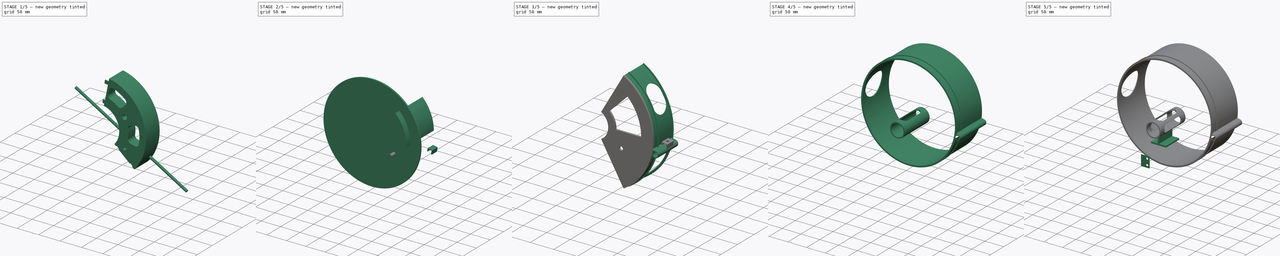
[diagram: build sequence overview — one tinted view per stage of 5, left to right]
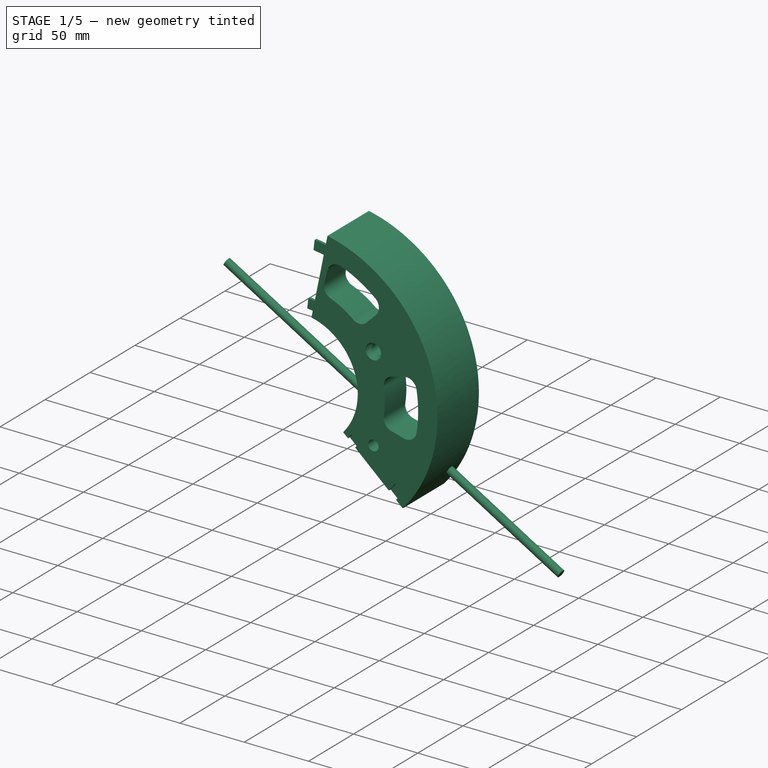
[diagram: stage 1 of 5 — iso view after this stage's code; geometry added in this stage tinted green]
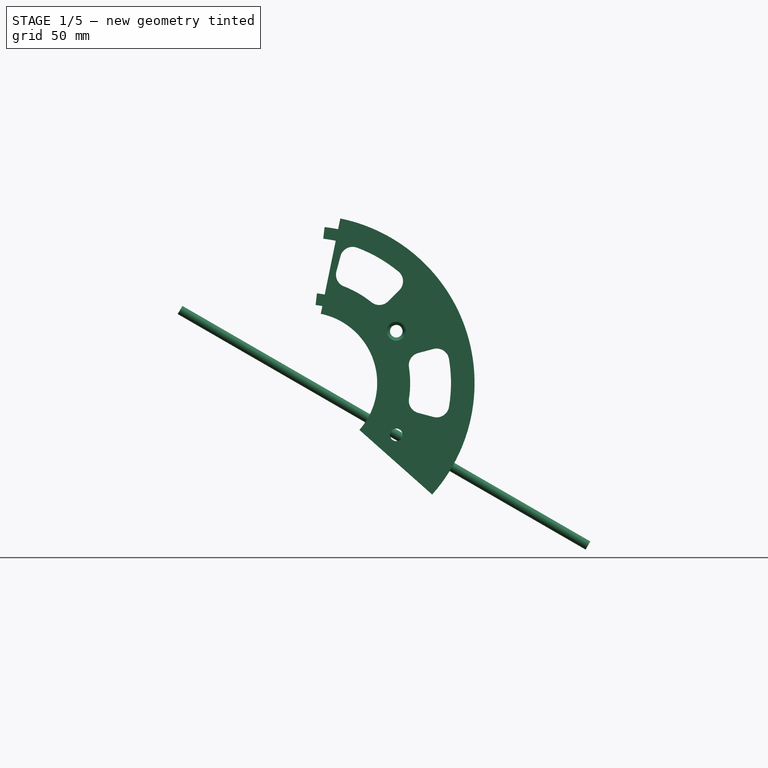
[diagram: stage 1 of 5 — front view after this stage's code; geometry added in this stage tinted green]
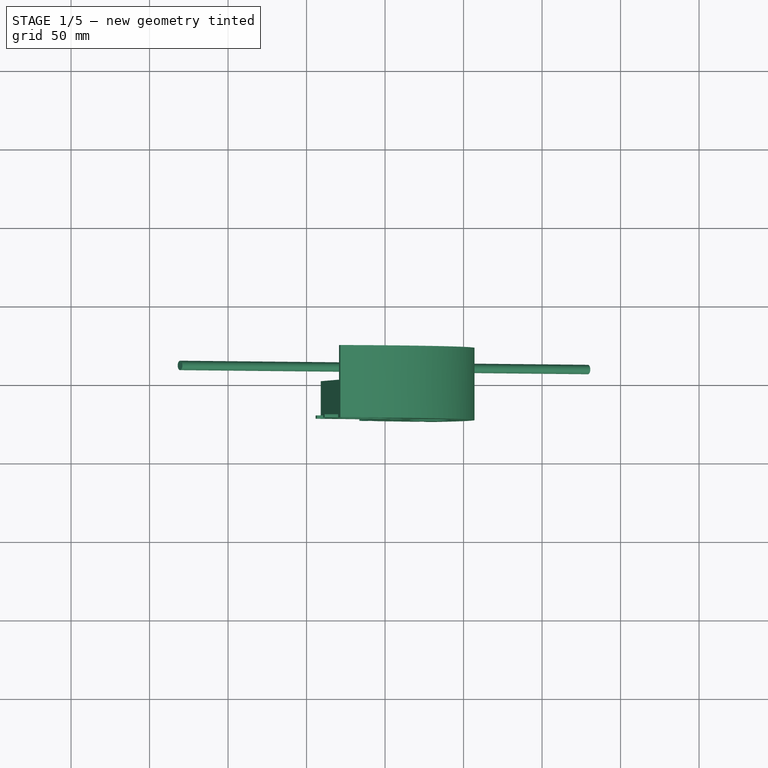
[diagram: stage 1 of 5 — top view after this stage's code; geometry added in this stage tinted green]
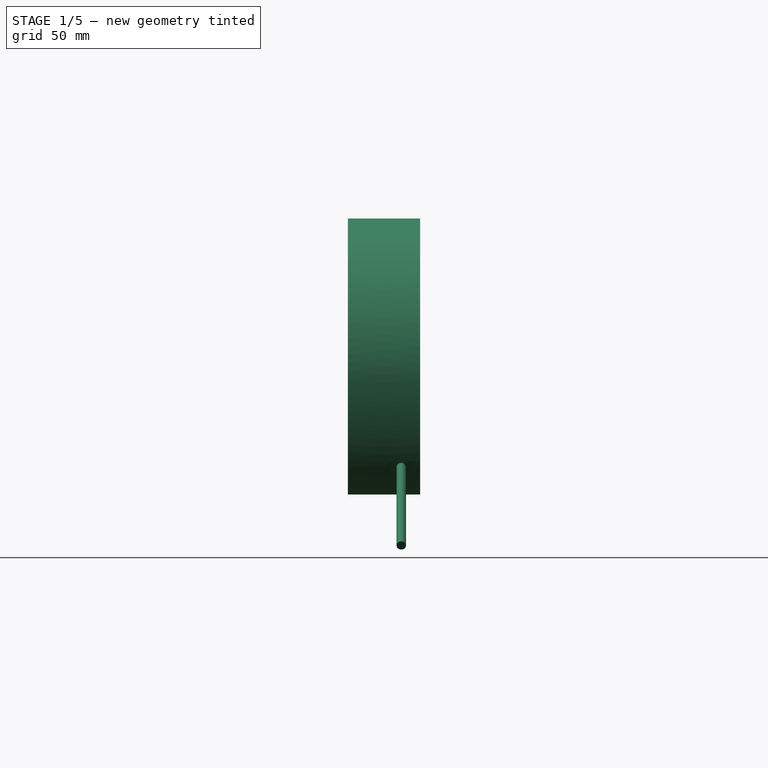
[diagram: stage 1 of 5 — right view after this stage's code; geometry added in this stage tinted green]
FCSTD DOCUMENT  (FreeCAD 0.19R24291 (Git))
Label: humboldt-1
License: All rights reserved
LicenseURL: http://en.wikipedia.org/wiki/All_rights_reserved
objects: Sketcher::SketchObject×48, Part::Extrusion×47, Part::Cut×23, Part::MultiFuse×10, Part::Fuse×3, Part::FeaturePython×2, Part::MultiCommon×1, Part::Chamfer×1
note: 135 computed .brp shape members not serialized (recipe doc carries the construction recipe); baked Part::Feature solids carry a one-line shape summary decoded from their .brp

FEATURE [Part::FeaturePython] Clone  label="(Sin guardar)001"  # WARN: FeaturePython — macro-defined, semantics opaque (R4)
  AttacherType = Attacher::AttachEngine3D
  Fuse = false
  Scale = (2,2,2)
FEATURE [Sketcher::SketchObject] Sketch
  FullyConstrained = false
  Placement = pos=(0,0,0) rot=(1,0,0;1.5708rad)
  sketch-geometry (3):
    g0: LineSegment StartX=0 StartY=0 StartZ=0 EndX=24.9664 EndY=121.65 EndZ=0
    g1: LineSegment StartX=0 StartY=0 StartZ=0 EndX=92.8692 EndY=-82.4468 EndZ=0
    g2: ArcOfCircle CenterX=0 CenterY=0 CenterZ=0 NormalX=0 NormalY=0 NormalZ=1 AngleXU=0 Radius=124.186 StartAngle=1.36838 EndAngle=5.55717
  constraints (6):
    c: Coincident(g0,g-1)
    c: Coincident(g1,g0)
    c: Angle(g1,g0) = 2.0944
    c: Coincident(g2,g0)
    c: Coincident(g2,g0)
    c: Coincident(g2,g1)
FEATURE [Part::Extrusion] Extrude
  Base = -> Sketch
  Dir = (0,-1,3e-16)
  DirMode = 2
  FaceMakerClass = Part::FaceMakerBullseye
  LengthFwd = 50
  LengthRev = 50
  Solid = true
  Symmetric = false
FEATURE [Part::Cut] Cut
  Base = -> Clone
  Tool = -> Extrude
FEATURE [Sketcher::SketchObject] Sketch003
  ExternalGeometry = -> [Cut]
  FullyConstrained = false
  Placement = pos=(0,-24,0) rot=(1,0,0;1.5708rad)
  sketch-geometry (8):
    g0: LineSegment StartX=5.74497 StartY=49.6689 StartZ=0 EndX=6.60671 EndY=57.1192 EndZ=0
    g1: LineSegment StartX=10.052 StartY=48.9791 StartZ=0 EndX=11.5598 EndY=56.326 EndZ=0
    g2: LineSegment StartX=18.5963 StartY=90.6114 StartZ=0 EndX=20.1041 EndY=97.9583 EndZ=0
    g3: LineSegment StartX=10.6282 StartY=91.8874 StartZ=0 EndX=11.4899 EndY=99.3377 EndZ=0
    g4: ArcOfCircle CenterX=0 CenterY=0 CenterZ=0 NormalX=0 NormalY=0 NormalZ=1 AngleXU=0 Radius=57.5 StartAngle=1.36838 EndAngle=1.45564
    g5: ArcOfCircle CenterX=0 CenterY=0 CenterZ=0 NormalX=0 NormalY=0 NormalZ=1 AngleXU=0 Radius=92.5 StartAngle=1.36838 EndAngle=1.45564
    g6: ArcOfCircle CenterX=0 CenterY=0 CenterZ=0 NormalX=0 NormalY=0 NormalZ=1 AngleXU=0 Radius=100 StartAngle=1.36838 EndAngle=1.45564
    g7: ArcOfCircle CenterX=0 CenterY=0 CenterZ=0 NormalX=0 NormalY=0 NormalZ=1 AngleXU=0 Radius=50 StartAngle=1.36838 EndAngle=1.45564
  constraints (11):
    c: Angle(g-3,g0) = 0.0872665
    c: Tangent(g1,g2)
    c: Tangent(g0,g3)
    c: Coincident(g0,g7)
    c: Coincident(g4,g0)
    c: Coincident(g5,g3)
    c: Coincident(g6,g3)
    c: Coincident(g4,g1)
    c: Coincident(g5,g2)
    c: Coincident(g6,g2)
    c: Coincident(g1,g7)
FEATURE [Sketcher::SketchObject] Sketch004
  FullyConstrained = false
  Placement = pos=(0,-24,0) rot=(1,0,0;1.5708rad)
  sketch-geometry (8):
    g0: ArcOfCircle CenterX=0 CenterY=0 CenterZ=0 NormalX=0 NormalY=0 NormalZ=1 AngleXU=0 Radius=50 StartAngle=5.55717 EndAngle=5.64443
    g1: ArcOfCircle CenterX=0 CenterY=0 CenterZ=0 NormalX=0 NormalY=0 NormalZ=1 AngleXU=0 Radius=57.5 StartAngle=5.55717 EndAngle=5.64443
    g2: ArcOfCircle CenterX=0 CenterY=0 CenterZ=0 NormalX=0 NormalY=0 NormalZ=1 AngleXU=0 Radius=100 StartAngle=5.55717 EndAngle=5.64443
    g3: ArcOfCircle CenterX=0 CenterY=0 CenterZ=0 NormalX=0 NormalY=0 NormalZ=1 AngleXU=0 Radius=92.5 StartAngle=5.55717 EndAngle=5.64443
    g4: LineSegment StartX=80.284 StartY=-59.6194 StartZ=0 EndX=74.2627 EndY=-55.148 EndZ=0
    g5: LineSegment StartX=37.3912 StartY=-33.1949 StartZ=0 EndX=42.9998 EndY=-38.1741 EndZ=0
    g6: LineSegment StartX=69.1737 StartY=-61.4105 StartZ=0 EndX=74.7823 EndY=-66.3898 EndZ=0
    g7: LineSegment StartX=46.1633 StartY=-34.2812 StartZ=0 EndX=40.142 EndY=-29.8097 EndZ=0
  constraints (22):
    c: PointOnObject(g0,g-1)
    c: PointOnObject(g0,g-2)
    c: Diameter(g0) = 100
    c: PointOnObject(g1,g-2)
    c: PointOnObject(g1,g-1)
    c: Diameter(g1) = 115
    c: PointOnObject(g3,g-1)
    c: PointOnObject(g3,g-2)
    c: Diameter(g3) = 185
    c: PointOnObject(g2,g-1)
    c: PointOnObject(g2,g-2)
    c: Diameter(g2) = 200
    c: Coincident(g4,g2)
    c: Coincident(g6,g2)
    c: Coincident(g5,g1)
    c: Coincident(g6,g3)
    c: Tangent(g5,g6)
    c: Coincident(g5,g0)
    c: Coincident(g7,g0)
    c: Coincident(g4,g3)
    c: Coincident(g7,g1)
    c: Tangent(g4,g7)
FEATURE [Part::Extrusion] Extrude001  label="tab1"
  Base = -> Sketch003
  Dir = (0,-1,2e-16)
  DirMode = 2
  FaceMakerClass = Part::FaceMakerBullseye
  LengthFwd = 2
  LengthRev = 0
  Reversed = true
  Solid = true
  Symmetric = false
FEATURE [Part::Extrusion] Extrude002  label="tab2"
  Base = -> Sketch004
  Dir = (0,-1,-3e-16)
  DirMode = 2
  FaceMakerClass = Part::FaceMakerBullseye
  LengthFwd = 2
  LengthRev = 0
  Reversed = true
  Solid = true
  Symmetric = false
FEATURE [Part::FeaturePython] XOR  # WARN: FeaturePython — macro-defined, semantics opaque (R4)
  Objects = -> [Extrude002,Cut]
  Tolerance = 0
FEATURE [Sketcher::SketchObject] Sketch006
  ExternalGeometry = -> [XOR]
  FullyConstrained = false
  Placement = pos=(0,0,0) rot=(1,0,0;1.5708rad)
  sketch-geometry (1):
    g0: Circle CenterX=57.1577 CenterY=-33 CenterZ=0 NormalX=0 NormalY=0 NormalZ=1 AngleXU=0 Radius=11.449
  constraints (1):
    c: Tangent(g0,g-3) = -1.5708
FEATURE [Part::Extrusion] Extrude003
  Base = -> Sketch006
  Dir = (0,-1,2e-16)
  DirMode = 2
  FaceMakerClass = Part::FaceMakerBullseye
  LengthFwd = 24
  LengthRev = 0
  Solid = true
  Symmetric = false
FEATURE [Sketcher::SketchObject] Sketch007
  ExternalGeometry = -> [XOR]
  FullyConstrained = true
  Placement = pos=(0,0,0) rot=(1,0,0;1.5708rad)
  sketch-geometry (1):
    g0: Circle CenterX=57.1577 CenterY=-33 CenterZ=0 NormalX=0 NormalY=0 NormalZ=1 AngleXU=0 Radius=4
  constraints (2):
    c: Diameter(g0) = 8
    c: Coincident(g0,g-3)
FEATURE [Part::Extrusion] Extrude004
  Base = -> Sketch007
  Dir = (0,-1,2e-16)
  DirMode = 2
  FaceMakerClass = Part::FaceMakerBullseye
  LengthFwd = 50
  LengthRev = 25
  Solid = true
  Symmetric = false
FEATURE [Part::Fuse] Fusion
  Base = -> XOR
  Tool = -> Extrude003
FEATURE [Part::Cut] Cut001
  Base = -> Fusion
  Tool = -> Extrude004
FEATURE [Sketcher::SketchObject] Sketch008
  ExternalGeometry = -> [Cut001]
  FullyConstrained = true
  Placement = pos=(0,0,0) rot=(1,0,0;1.5708rad)
  sketch-geometry (7):
    g0: LineSegment StartX=53.6936 StartY=-27 StartZ=0 EndX=50.2295 EndY=-33 EndZ=0
    g1: LineSegment StartX=50.2295 StartY=-33 StartZ=0 EndX=53.6936 EndY=-39 EndZ=0
    g2: LineSegment StartX=53.6936 StartY=-39 StartZ=0 EndX=60.6218 EndY=-39 EndZ=0
    g3: LineSegment StartX=60.6218 StartY=-39 StartZ=0 EndX=64.0859 EndY=-33 EndZ=0
    g4: LineSegment StartX=64.0859 StartY=-33 StartZ=0 EndX=60.6218 EndY=-27 EndZ=0
    g5: LineSegment StartX=60.6218 StartY=-27 StartZ=0 EndX=53.6936 EndY=-27 EndZ=0
    g6: Circle CenterX=57.1577 CenterY=-33 CenterZ=0 NormalX=0 NormalY=0 NormalZ=1 AngleXU=0 Radius=6.9282
  constraints (16):
    c: Coincident(g0,g1)
    c: Coincident(g1,g2)
    c: Coincident(g2,g3)
    c: Coincident(g3,g4)
    c: Coincident(g4,g5)
    c: Coincident(g5,g0)
    c: Equal(g0, g1-g5) x5
    c: PointOnObject(g0,g6)
    c: PointOnObject(g1,g6)
    c: PointOnObject(g2,g6)
    c: PointOnObject(g3,g6)
    c: PointOnObject(g4,g6)
    c: PointOnObject(g5,g6)
    c: Parallel(g5,g-1)
    c: Coincident(g-3,g6)
    c: DistanceY(g1,g0) = 12
FEATURE [Part::Extrusion] Extrude005
  Base = -> Sketch008
  Dir = (0,-1,2e-16)
  DirMode = 2
  FaceMakerClass = Part::FaceMakerBullseye
  LengthFwd = 6
  LengthRev = 0
  Solid = true
  Symmetric = false
FEATURE [Part::Cut] Cut002
  Base = -> Cut001
  Tool = -> Extrude005
FEATURE [Part::MultiFuse] Fusion001  label="primary mirror cell"
  Shapes = -> [Extrude001,Cut002]
FEATURE [Sketcher::SketchObject] Sketch013
  ExternalGeometry = -> [Fusion001]
  FullyConstrained = true
  MapMode = 45
  Placement = pos=(92.6323,16,-53.4813) rot=(0.654654,0.654653,0.377965;2.41886rad)
  Support = -> [Fusion001]
  sketch-geometry (1):
    g0: Circle CenterX=-6.00001 CenterY=0 CenterZ=0 NormalX=0 NormalY=0 NormalZ=1 AngleXU=0 Radius=3
  constraints (3):
    c: Diameter(g0) = 6
    c: PointOnObject(g0,g-1)
    c: DistanceX(g0,g-4) = -10
FEATURE [Part::Extrusion] Extrude010
  Base = -> Sketch013
  Dir = (0.866025,3.15e-14,-0.5)
  DirMode = 2
  FaceMakerClass = Part::FaceMakerBullseye
  LengthFwd = 50
  LengthRev = 50
  Solid = true
  Symmetric = false
FEATURE [Sketcher::SketchObject] Sketch014
  ExternalGeometry = -> [Fusion001]
  FullyConstrained = true
  Placement = pos=(0,0,0) rot=(1,0,0;1.5708rad)
  sketch-geometry (4):
    g0: ArcOfCircle CenterX=0 CenterY=0 CenterZ=0 NormalX=0 NormalY=0 NormalZ=1 AngleXU=0 Radius=103 StartAngle=5.55717 EndAngle=7.65156
    g1: ArcOfCircle CenterX=0 CenterY=0 CenterZ=0 NormalX=0 NormalY=0 NormalZ=1 AngleXU=0 Radius=107 StartAngle=5.55717 EndAngle=7.65156
    g2: LineSegment StartX=21.5114 StartY=104.815 StartZ=0 EndX=20.7072 EndY=100.897 EndZ=0
    g3: LineSegment StartX=77.0258 StartY=-68.3815 StartZ=0 EndX=80.0171 EndY=-71.0371 EndZ=0
  constraints (11):
    c: Coincident(g0,g-1)
    c: PointOnObject(g-3,g0)
    c: Coincident(g1,g0)
    c: Coincident(g2,g-4)
    c: Coincident(g2,g-3)
    c: Coincident(g3,g-3)
    c: Coincident(g3,g-4)
    c: Coincident(g1,g3)
    c: Coincident(g1,g2)
    c: Coincident(g0,g3)
    c: Coincident(g0,g2)
FEATURE [Part::Extrusion] Extrude011
  Base = -> Sketch014
  Dir = (0,-1,3e-16)
  DirMode = 2
  FaceMakerClass = Part::FaceMakerBullseye
  LengthFwd = 22
  LengthRev = 0
  Reversed = true
  Solid = true
  Symmetric = false
FEATURE [Part::Fuse] Fusion003
  Base = -> Fusion001
  Tool = -> Extrude011
FEATURE [Sketcher::SketchObject] Sketch017
  ExternalGeometry = -> [Extrude010]
  FullyConstrained = true
  MapMode = 5
  Placement = pos=(49.3311,1.8308e-12,-28.4813) rot=(0.447214,-0.447214,-0.774597;1.82348rad)
  Support = -> [Extrude010]
  sketch-geometry (1):
    g0: Circle CenterX=-9.99999 CenterY=-3.58022e-06 CenterZ=0 NormalX=0 NormalY=0 NormalZ=1 AngleXU=0 Radius=3
  constraints (3):
    c: Coincident(g0,g-3)
    c: Diameter(g-3) = 6
    c: Diameter(g0) = 6
FEATURE [Part::Extrusion] Extrude014
  Base = -> Sketch017
  Dir = (-0.866025,-3.23e-14,0.5)
  DirMode = 2
  FaceMakerClass = Part::FaceMakerBullseye
  LengthFwd = 150
  LengthRev = 150
  Solid = true
  Symmetric = false
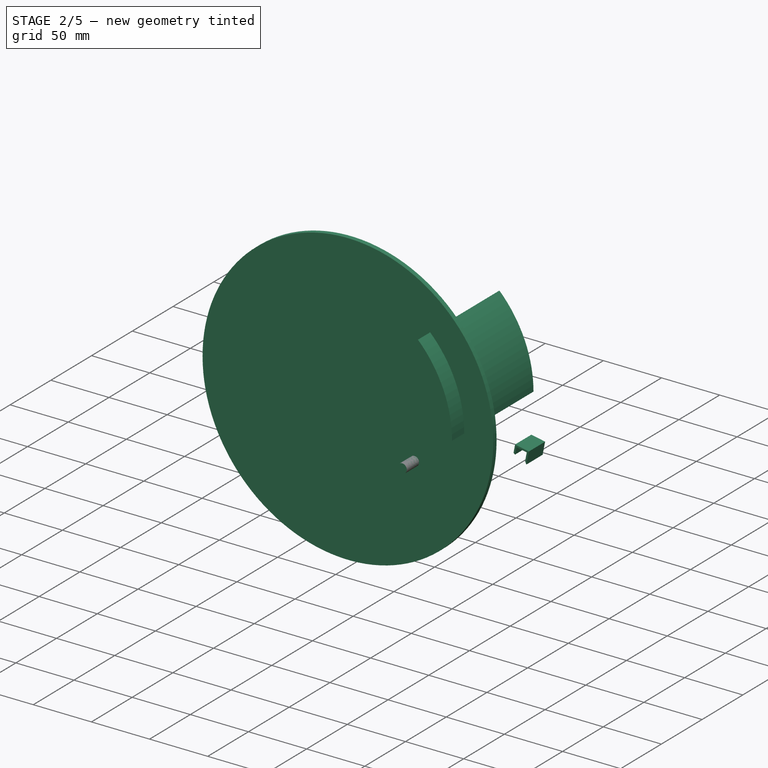
[diagram: stage 2 of 5 — iso view after this stage's code; geometry added in this stage tinted green]
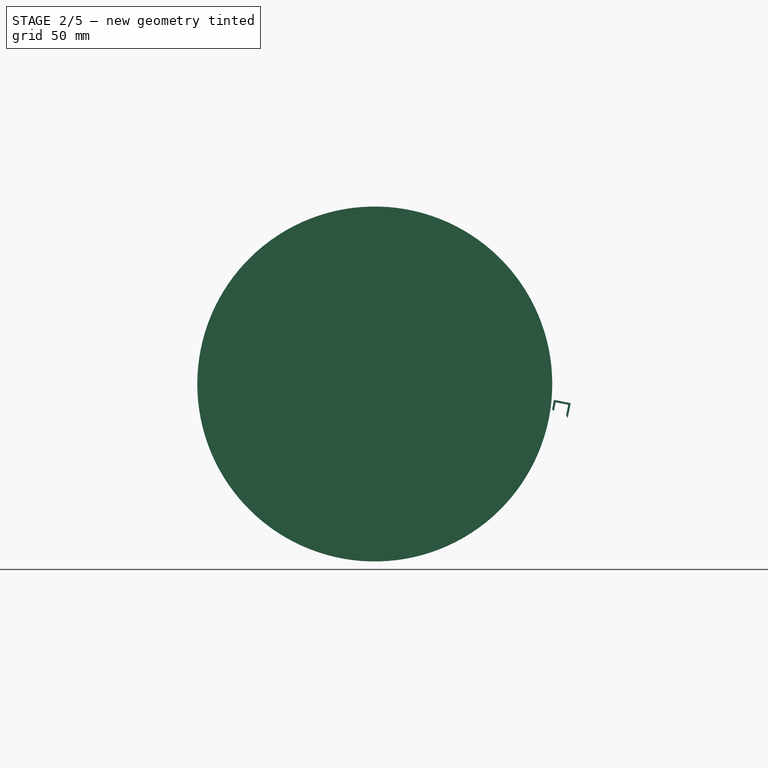
[diagram: stage 2 of 5 — front view after this stage's code; geometry added in this stage tinted green]
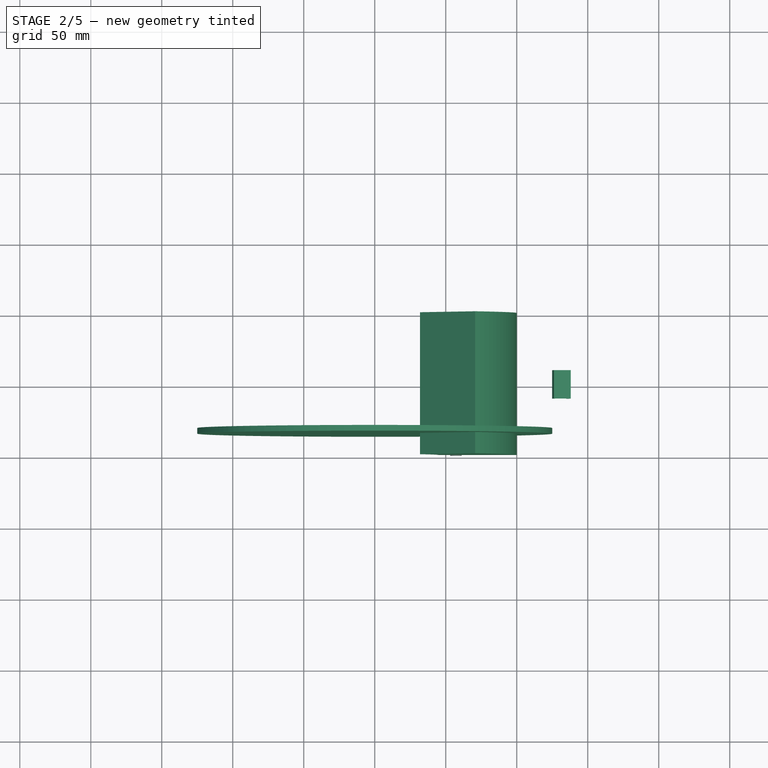
[diagram: stage 2 of 5 — top view after this stage's code; geometry added in this stage tinted green]
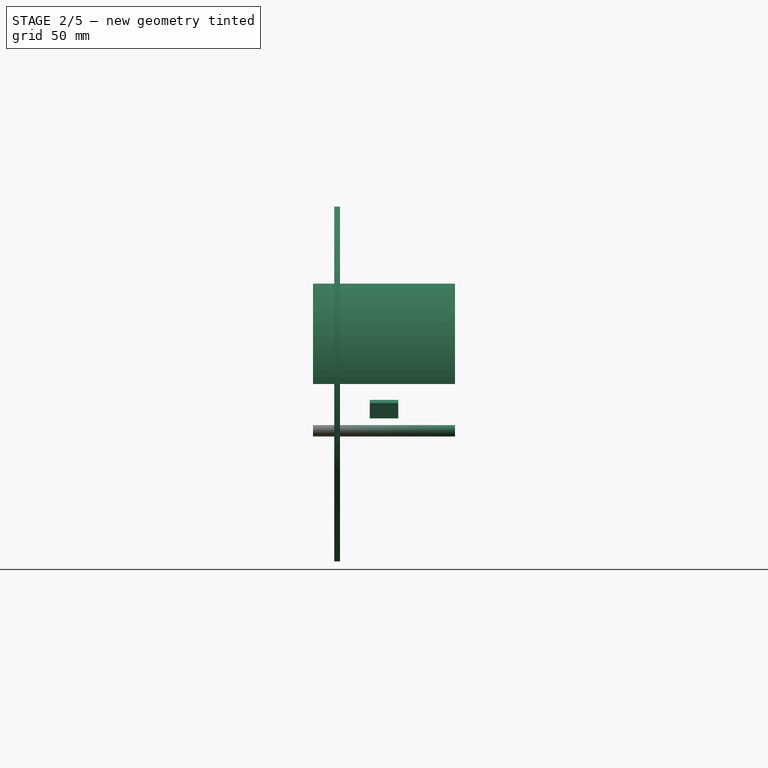
[diagram: stage 2 of 5 — right view after this stage's code; geometry added in this stage tinted green]
FEATURE [Sketcher::SketchObject] Sketch015
  ExternalGeometry = -> [Fusion003]
  FullyConstrained = false
  Placement = pos=(0,18,0) rot=(0,0.707107,0.707107;3.14159rad)
  sketch-geometry (1):
    g0: Circle CenterX=0 CenterY=0 CenterZ=0 NormalX=0 NormalY=0 NormalZ=1 AngleXU=0 Radius=139.726
  constraints (1):
    c: Coincident(g0,g-1)
FEATURE [Part::Extrusion] Extrude012
  Base = -> Sketch015
  Dir = (0,1,0)
  DirMode = 2
  FaceMakerClass = Part::FaceMakerBullseye
  LengthFwd = 50
  LengthRev = 0
  Solid = true
  Symmetric = false
FEATURE [Part::Cut] Cut004
  Base = -> Fusion003
  Tool = -> Extrude012
FEATURE [Part::Cut] Cut005
  Base = -> Cut004
  Tool = -> Extrude010
FEATURE [Sketcher::SketchObject] Sketch016
  ExternalGeometry = -> [Cut005,Extrude010]
  FullyConstrained = false
  MapMode = 3
  Placement = pos=(0,0,0) rot=(1,0,0;1.5708rad)
  sketch-geometry (11):
    g0: LineSegment StartX=101.009 StartY=-50.8136 StartZ=0 EndX=94.5104 EndY=-62.0696 EndZ=0
    g1: LineSegment StartX=98.96 StartY=-51.3626 StartZ=0 EndX=93.9613 EndY=-60.0205 EndZ=0
    g2: LineSegment StartX=93.9613 StartY=-60.0205 StartZ=0 EndX=90.0642 EndY=-57.7705 EndZ=0
    g3: LineSegment StartX=94.5104 StartY=-62.0696 StartZ=0 EndX=89.2443 EndY=-59.0292 EndZ=0
    g4: LineSegment StartX=95.0629 StartY=-49.1126 StartZ=0 EndX=98.96 EndY=-51.3626 EndZ=0
    g5: LineSegment StartX=95.743 StartY=-47.7733 StartZ=0 EndX=101.009 EndY=-50.8136 EndZ=0
    g6: LineSegment StartX=95.0629 StartY=-49.1126 StartZ=0 EndX=95.743 EndY=-47.7733 EndZ=0
    g7: LineSegment StartX=89.2443 StartY=-59.0292 StartZ=0 EndX=90.0642 EndY=-57.7705 EndZ=0
    g8: LineSegment StartX=98.9789 StartY=-49.6415 StartZ=0 EndX=98.2289 EndY=-50.9406 EndZ=0
    g9: LineSegment StartX=90.8533 StartY=-58.2261 StartZ=0 EndX=90.1033 EndY=-59.5252 EndZ=0
    g10: LineSegment StartX=97.4334 StartY=-54.0068 StartZ=0 EndX=98.7324 EndY=-54.7568 EndZ=0
  constraints (34):
    c: Diameter(g-9) = 214
    c: Perpendicular(g-8,g0)
    c: Perpendicular(g-8,g1)
    c: Coincident(g3,g0)
    c: Coincident(g2,g1)
    c: Perpendicular(g1,g2)
    c: Perpendicular(g0,g3)
    c: Coincident(g5,g0)
    c: Coincident(g4,g1)
    c: Perpendicular(g1,g4)
    c: Perpendicular(g5,g0)
    c: PointOnObject(g4,g-9)
    c: PointOnObject(g5,g-9)
    c: PointOnObject(g3,g-10)
    c: PointOnObject(g2,g-10)
    c: Coincident(g6,g4)
    c: Coincident(g6,g5)
    c: Coincident(g7,g3)
    c: Coincident(g7,g2)
    c: Perpendicular(g5,g8)
    c: PointOnObject(g8,g5)
    c: PointOnObject(g8,g4)
    c: Perpendicular(g2,g9)
    c: PointOnObject(g9,g2)
    c: PointOnObject(g9,g3)
    c: Distance(g9) = 1.5
    c: Distance(g8) = 1.5
    c: Distance(g2,g-7) = 5
    c: Distance(g-7,g4) = 5
    c: Distance(g1,g4) = 4.5
    c: Perpendicular(g0,g10)
    c: PointOnObject(g10,g0)
    c: PointOnObject(g10,g1)
    c: Distance(g10) = 1.5
FEATURE [Part::Extrusion] Extrude013
  Base = -> Sketch016
  Dir = (0,-1,2e-16)
  DirMode = 2
  FaceMakerClass = Part::FaceMakerBullseye
  LengthFwd = 0
  LengthRev = 18
  Solid = true
  Symmetric = false
FEATURE [Part::Fuse] Fusion004
  Base = -> Cut005
  Tool = -> Extrude013
FEATURE [Part::Cut] Cut006
  Base = -> Fusion004
  Tool = -> Extrude014
FEATURE [Sketcher::SketchObject] Sketch018
  ExternalGeometry = -> [Cut006]
  FullyConstrained = false
  Placement = pos=(0,12,0) rot=(0,0.707107,0.707107;3.14159rad)
  sketch-geometry (11):
    g0: Circle CenterX=0 CenterY=0 CenterZ=0 NormalX=0 NormalY=0 NormalZ=1 AngleXU=0 Radius=107
    g1: Circle CenterX=0 CenterY=0 CenterZ=0 NormalX=0 NormalY=0 NormalZ=1 AngleXU=0 Radius=113.07
    g2: LineSegment StartX=0 StartY=0 StartZ=0 EndX=-125.047 EndY=0 EndZ=0
    g3: LineSegment StartX=-120 StartY=14 StartZ=0 EndX=-120 EndY=-14 EndZ=0
    g4: LineSegment StartX=-120 StartY=14 StartZ=0 EndX=-104.941 EndY=14 EndZ=0
    g5: LineSegment StartX=-120 StartY=-14 StartZ=0 EndX=-104.941 EndY=-14 EndZ=0
    g6: Circle CenterX=-114 CenterY=8 CenterZ=0 NormalX=0 NormalY=0 NormalZ=1 AngleXU=0 Radius=3
    g7: Circle CenterX=-114 CenterY=-8 CenterZ=0 NormalX=0 NormalY=0 NormalZ=1 AngleXU=0 Radius=3
    g8: Circle CenterX=-114 CenterY=8 CenterZ=0 NormalX=0 NormalY=0 NormalZ=1 AngleXU=0 Radius=5
    g9: Circle CenterX=-114 CenterY=-8 CenterZ=0 NormalX=0 NormalY=0 NormalZ=1 AngleXU=0 Radius=5
    g10: LineSegment StartX=-104.941 StartY=14 StartZ=0 EndX=-104.941 EndY=-14 EndZ=0
  constraints (29):
    c: Coincident(g0,g-1)
    c: PointOnObject(g-3,g0)
    c: Coincident(g1,g0)
    c: PointOnObject(g-4,g1)
    c: Diameter(g-3) = 214
    c: Distance(g-4) = 6.08071
    c: Horizontal(g2)
    c: Coincident(g2,g0)
    c: Perpendicular(g2,g3)
    c: Coincident(g5,g3)
    c: Coincident(g4,g3)
    c: Perpendicular(g3,g4)
    c: Perpendicular(g3,g5)
    c: Diameter(g6) = 6
    c: Diameter(g7) = 6
    c: DistanceX(g3,g7) = 6
    c: DistanceX(g3,g6) = 6
    c: Diameter(g8) = 10
    c: Diameter(g9) = 10
    c: Coincident(g9,g7)
    c: Coincident(g8,g6)
    c: DistanceY(g5,g2) = 14
    c: DistanceY(g2,g4) = 14
    c: DistanceY(g7,g2) = 8
    c: DistanceY(g2,g6) = 8
    c: DistanceX(g6,g0) = 114
    c: Coincident(g10,g4)
    c: Coincident(g10,g5)
    c: Vertical(g10)
FEATURE [Part::Extrusion] Extrude015
  Base = -> Sketch018
  Dir = (1e-16,1,0)
  DirMode = 2
  FaceMakerClass = Part::FaceMakerBullseye
  LengthFwd = 6
  LengthRev = 0
  Solid = true
  Symmetric = false
FEATURE [Sketcher::SketchObject] Sketch019
  ExternalGeometry = -> [Extrude015]
  FullyConstrained = true
  Placement = pos=(0,12,0) rot=(0,0.707107,0.707107;3.14159rad)
  sketch-geometry (14):
    g0: LineSegment StartX=-111.402 StartY=-3.5 StartZ=0 EndX=-116.598 EndY=-3.5 EndZ=0
    g1: LineSegment StartX=-116.598 StartY=-3.5 StartZ=0 EndX=-119.196 EndY=-8 EndZ=0
    g2: LineSegment StartX=-119.196 StartY=-8 StartZ=0 EndX=-116.598 EndY=-12.5 EndZ=0
    g3: LineSegment StartX=-116.598 StartY=-12.5 StartZ=0 EndX=-111.402 EndY=-12.5 EndZ=0
    g4: LineSegment StartX=-111.402 StartY=-12.5 StartZ=0 EndX=-108.804 EndY=-8 EndZ=0
    g5: LineSegment StartX=-108.804 StartY=-8 StartZ=0 EndX=-111.402 EndY=-3.5 EndZ=0
    g6: Circle CenterX=-114 CenterY=-8 CenterZ=0 NormalX=0 NormalY=0 NormalZ=1 AngleXU=0 Radius=5.19615
    g7: LineSegment StartX=-111.402 StartY=3.5 StartZ=0 EndX=-108.804 EndY=8 EndZ=0
    g8: LineSegment StartX=-108.804 StartY=8 StartZ=0 EndX=-111.402 EndY=12.5 EndZ=0
    g9: LineSegment StartX=-111.402 StartY=12.5 StartZ=0 EndX=-116.598 EndY=12.5 EndZ=0
    g10: LineSegment StartX=-116.598 StartY=12.5 StartZ=0 EndX=-119.196 EndY=8 EndZ=0
    g11: LineSegment StartX=-119.196 StartY=8 StartZ=0 EndX=-116.598 EndY=3.5 EndZ=0
    g12: LineSegment StartX=-116.598 StartY=3.5 StartZ=0 EndX=-111.402 EndY=3.5 EndZ=0
    g13: Circle CenterX=-114 CenterY=8 CenterZ=0 NormalX=0 NormalY=0 NormalZ=1 AngleXU=0 Radius=5.19615
  constraints (32):
    c: Coincident(g0,g1)
    c: Coincident(g1,g2)
    c: Coincident(g2,g3)
    c: Coincident(g3,g4)
    c: Coincident(g4,g5)
    c: Coincident(g5,g0)
    c: Equal(g0, g1-g5) x5
    c: PointOnObject(g0,g6)
    c: PointOnObject(g1,g6)
    c: PointOnObject(g2,g6)
    c: PointOnObject(g3,g6)
    c: PointOnObject(g4,g6)
    c: PointOnObject(g5,g6)
    c: Coincident(g7,g8)
    c: Coincident(g8,g9)
    c: Coincident(g9,g10)
    c: Coincident(g10,g11)
    c: Coincident(g11,g12)
    c: Coincident(g12,g7)
    c: Equal(g7, g8-g12) x5
    c: PointOnObject(g7,g13)
    c: PointOnObject(g8,g13)
    c: PointOnObject(g9,g13)
    c: PointOnObject(g10,g13)
    c: PointOnObject(g11,g13)
    c: PointOnObject(g12,g13)
    c: Distance(g10,g7) = 9
    c: Distance(g0,g3) = 9
    c: Coincident(g6,g-3)
    c: Coincident(g13,g-4)
    c: Parallel(g9,g-1)
    c: Parallel(g3,g-1)
FEATURE [Part::Extrusion] Extrude016
  Base = -> Sketch019
  Dir = (0,1,0)
  DirMode = 2
  FaceMakerClass = Part::FaceMakerBullseye
  LengthFwd = 2
  LengthRev = 0
  Solid = true
  Symmetric = false
FEATURE [Part::Cut] Cut007
  Base = -> Extrude015
  Tool = -> Extrude016
FEATURE [Part::MultiFuse] Fusion005  label="celda primario"
  Shapes = -> [Cut006,Cut007]
FEATURE [Sketcher::SketchObject] Sketch021
  ExternalGeometry = -> [Fusion005]
  FullyConstrained = false
  Placement = pos=(0,-25,0) rot=(0,0.707107,0.707107;3.14159rad)
  sketch-geometry (9):
    g0: Circle CenterX=0 CenterY=0 CenterZ=0 NormalX=0 NormalY=0 NormalZ=1 AngleXU=0 Radius=123
    g1: ArcOfCircle CenterX=0 CenterY=0 CenterZ=0 NormalX=0 NormalY=0 NormalZ=1 AngleXU=0 Radius=125 StartAngle=3.39996 EndAngle=9.55608
    g2: Circle CenterX=-129.503 CenterY=-25.5558 CenterZ=0 NormalX=0 NormalY=0 NormalZ=1 AngleXU=0 Radius=5
    g3: ArcOfCircle CenterX=-129.503 CenterY=-25.5558 CenterZ=0 NormalX=0 NormalY=0 NormalZ=1 AngleXU=0 Radius=7 StartAngle=1.76563 EndAngle=4.90722
    g4: LineSegment StartX=-129.503 StartY=-25.5558 StartZ=0 EndX=0 EndY=0 EndZ=0
    g5: LineSegment StartX=-130.858 StartY=-18.6883 StartZ=0 EndX=-124.722 EndY=-17.4774 EndZ=0
    g6: LineSegment StartX=-128.147 StartY=-32.4234 StartZ=0 EndX=-122.011 EndY=-31.2125 EndZ=0
    g7: ArcOfCircle CenterX=-124.915 CenterY=-16.4963 CenterZ=0 NormalX=0 NormalY=0 NormalZ=1 AngleXU=0 Radius=1 StartAngle=4.90722 EndAngle=6.41449
    g8: ArcOfCircle CenterX=-121.818 CenterY=-32.1936 CenterZ=0 NormalX=0 NormalY=0 NormalZ=1 AngleXU=0 Radius=1 StartAngle=0.25837 EndAngle=1.76563
  constraints (20):
    c: Coincident(g0,g-1)
    c: Diameter(g0) = 246
    c: Coincident(g1,g0)
    c: Diameter(g1) = 250
    c: Diameter(g2) = 10
    c: Diameter(g3) = 14
    c: Coincident(g2,g3)
    c: Distance(g2,g0) = 132
    c: Coincident(g4,g2)
    c: Coincident(g4,g0)
    c: Parallel(g5,g4)
    c: Parallel(g6,g4)
    c: Diameter(g7) = 2
    c: Diameter(g8) = 2
    c: Tangent(g6,g8) = 1.5708
    c: Tangent(g5,g7) = -1.5708
    c: Tangent(g3,g5) = 1.5708
    c: Tangent(g3,g6) = -1.5708
    c: Tangent(g1,g7) = 1.5708
    c: Tangent(g1,g8) = 1.5708
FEATURE [Part::Extrusion] Extrude018
  Base = -> Sketch021
  Dir = (1e-16,1,0)
  DirMode = 2
  FaceMakerClass = Part::FaceMakerBullseye
  LengthFwd = 50
  LengthRev = 10
  Solid = true
  Symmetric = false
FEATURE [Sketcher::SketchObject] Sketch022
  ExternalGeometry = -> [Extrude018]
  FullyConstrained = false
  MapMode = 11
  Placement = pos=(97.7597,9.99999,-56.4416) rot=(0,1,0;2.0944rad)
  Support = -> [Fusion005]
  sketch-geometry (4):
    g0: ArcOfCircle CenterX=-9 CenterY=-8 CenterZ=0 NormalX=0 NormalY=0 NormalZ=1 AngleXU=0 Radius=20 StartAngle=1.5708 EndAngle=4.71239
    g1: ArcOfCircle CenterX=9 CenterY=-8 CenterZ=0 NormalX=0 NormalY=0 NormalZ=1 AngleXU=0 Radius=20 StartAngle=4.71239 EndAngle=7.85398
    g2: LineSegment StartX=-9 StartY=12 StartZ=0 EndX=9 EndY=12 EndZ=0
    g3: LineSegment StartX=-9 StartY=-28 StartZ=0 EndX=9 EndY=-28 EndZ=0
  constraints (10):
    c: DistanceY(g1,g0) = 0
    c: Diameter(g0) = 40
    c: Diameter(g1) = 40
    c: DistanceY(g0,g-1) = 8
    c: DistanceX(g0,g-1) = 9
    c: DistanceX(g-1,g1) = 9
    c: Horizontal(g2)
    c: Horizontal(g3)
    c: Tangent(g0,g3) = -1.5708
    c: Tangent(g1,g2) = 1.5708
FEATURE [Part::Extrusion] Extrude020
  Base = -> Sketch022
  Dir = (0.866025,3.23e-14,-0.5)
  DirMode = 2
  FaceMakerClass = Part::FaceMakerBullseye
  LengthFwd = 50
  LengthRev = 150
  Solid = true
  Symmetric = false
FEATURE [Part::Cut] Cut008
  Base = -> Extrude018
  Tool = -> Extrude020
FEATURE [Sketcher::SketchObject] Sketch023
  ExternalGeometry = -> [Extrude020,Fusion005]
  FullyConstrained = false
  Placement = pos=(0,0,0) rot=(0,0.707107,0.707107;3.14159rad)
  sketch-geometry (5):
    g0: LineSegment StartX=-71.3165 StartY=-123.524 StartZ=0 EndX=0 EndY=0 EndZ=0
    g1: LineSegment StartX=0 StartY=0 StartZ=0 EndX=-80 EndY=138.564 EndZ=0
    g2: LineSegment StartX=0 StartY=0 StartZ=0 EndX=-138.564 EndY=80 EndZ=0
    g3: LineSegment StartX=-142.355 StartY=92.9245 StartZ=0 EndX=0 EndY=0 EndZ=0
    g4: LineSegment StartX=-158.738 StartY=60.8466 StartZ=0 EndX=0 EndY=0 EndZ=0
  constraints (12):
    c: Coincident(g0,g-1)
    c: Coincident(g1,g0)
    c: Angle(g1,g0) = 2.0944
    c: Coincident(g2,g0)
    c: PointOnObject(g-4,g2)
    c: Angle(g1,g2) = 0.523599
    c: Distance(g2) = 160
    c: Distance(g1) = 160
    c: Coincident(g3,g0)
    c: Coincident(g4,g0)
    c: Distance(g3) = 170
    c: Distance(g4) = 170
FEATURE [Sketcher::SketchObject] Sketch024
  ExternalGeometry = -> [Extrude020]
  FullyConstrained = true
  MapMode = 7
  Placement = pos=(0,0,0) rot=(0.654654,-0.654654,-0.377964;2.41886rad)
  Support = -> [Sketch023]
  sketch-geometry (4):
    g0: ArcOfCircle CenterX=-1.99999 CenterY=9 CenterZ=0 NormalX=0 NormalY=0 NormalZ=1 AngleXU=0 Radius=20 StartAngle=-2.84e-14 EndAngle=3.14159
    g1: ArcOfCircle CenterX=-1.99999 CenterY=-9 CenterZ=0 NormalX=0 NormalY=0 NormalZ=1 AngleXU=0 Radius=20 StartAngle=3.14159 EndAngle=6.28319
    g2: LineSegment StartX=-22 StartY=9 StartZ=0 EndX=-22 EndY=-9 EndZ=0
    g3: LineSegment StartX=18 StartY=9 StartZ=0 EndX=18 EndY=-9 EndZ=0
  constraints (10):
    c: Diameter(g1) = 40
    c: Equal(g1,g0)
    c: DistanceY(g1,g-1) = 9
    c: DistanceY(g-1,g0) = 9
    c: Tangent(g0,g-4)
    c: Tangent(g1,g-4)
    c: Tangent(g0,g3) = 1.5708
    c: Tangent(g1,g3) = 1.5708
    c: Tangent(g1,g2) = -1.5708
    c: Tangent(g0,g2) = -1.5708
FEATURE [Part::Extrusion] Extrude021
  Base = -> Sketch024
  Dir = (-0.866025,0,-0.5)
  DirMode = 2
  FaceMakerClass = Part::FaceMakerBullseye
  LengthFwd = 0
  LengthRev = 200
  Solid = true
  Symmetric = false
FEATURE [Part::Cut] Cut009
  Base = -> Cut008
  Tool = -> Extrude021
FEATURE [Sketcher::SketchObject] Sketch025
  ExternalGeometry = -> [Cut009]
  FullyConstrained = false
  Placement = pos=(0,0,0) rot=(-1,0,0;4.71239rad)
  sketch-geometry (14):
    g0: LineSegment StartX=0 StartY=0 StartZ=0 EndX=129.503 EndY=-25.5558 EndZ=0
    g1: LineSegment StartX=129.503 StartY=-25.5558 StartZ=0 EndX=136.774 EndY=11.2936 EndZ=0
    g2: LineSegment StartX=126.212 StartY=-18.9872 StartZ=0 EndX=127.411 EndY=-12.9116 EndZ=0
    g3: LineSegment StartX=136.241 StartY=-14.6541 StartZ=0 EndX=134.829 EndY=-21.8053 EndZ=0
    g4: LineSegment StartX=127.411 StartY=-12.9116 StartZ=0 EndX=136.241 EndY=-14.6541 EndZ=0
    g5: LineSegment StartX=126.23 StartY=-11.1496 StartZ=0 EndX=138.003 EndY=-13.4729 EndZ=0
    g6: LineSegment StartX=138.003 StartY=-13.4729 StartZ=0 EndX=135.889 EndY=-24.1842 EndZ=0
    g7: LineSegment StartX=126.23 StartY=-11.1496 StartZ=0 EndX=124.88 EndY=-17.9885 EndZ=0
    g8: LineSegment StartX=127.411 StartY=-12.9116 StartZ=0 EndX=127.701 EndY=-11.44 EndZ=0
    g9: LineSegment StartX=136.241 StartY=-14.6541 StartZ=0 EndX=137.712 EndY=-14.9445 EndZ=0
    g10: LineSegment StartX=125.939 StartY=-12.6212 StartZ=0 EndX=127.411 EndY=-12.9116 EndZ=0
    g11: LineSegment StartX=130.858 StartY=-18.6883 StartZ=0 EndX=131.826 EndY=-13.7829 EndZ=0
    g12: LineSegment StartX=134.829 StartY=-21.8053 StartZ=0 EndX=135.889 EndY=-24.1842 EndZ=0
    g13: LineSegment StartX=124.88 StartY=-17.9885 StartZ=0 EndX=126.212 EndY=-18.9872 EndZ=0
  constraints (36):
    c: Coincident(g0,g-1)
    c: Coincident(g0,g-3)
    c: Coincident(g1,g0)
    c: Perpendicular(g0,g1)
    c: Coincident(g4,g2)
    c: Coincident(g4,g3)
    c: Coincident(g6,g5)
    c: Coincident(g7,g5)
    c: Perpendicular(g1,g4)
    c: Perpendicular(g1,g5)
    c: Perpendicular(g5,g7)
    c: Perpendicular(g4,g2)
    c: Perpendicular(g4,g3)
    c: Perpendicular(g5,g6)
    c: Parallel(g8,g1)
    c: Distance(g8) = 1.5
    c: Coincident(g8,g2)
    c: PointOnObject(g8,g5)
    c: Coincident(g9,g3)
    c: Perpendicular(g1,g9)
    c: PointOnObject(g9,g6)
    c: Distance(g9) = 1.5
    c: Perpendicular(g1,g10)
    c: Coincident(g10,g2)
    c: PointOnObject(g10,g7)
    c: Distance(g10) = 1.5
    c: Parallel(g11,g1)
    c: PointOnObject(g11,g4)
    c: Coincident(g11,g-4)
    c: Distance(g11) = 5
    c: Distance(g2,g3) = 9
    c: Distance(g11,g3) = 4.5
    c: Coincident(g12,g3)
    c: Coincident(g12,g6)
    c: Coincident(g13,g7)
    c: Coincident(g13,g2)
FEATURE [Part::Extrusion] Extrude022
  Base = -> Sketch025
  Dir = (0,-1,3e-16)
  DirMode = 2
  FaceMakerClass = Part::FaceMakerBullseye
  LengthFwd = 10
  LengthRev = 10
  Solid = true
  Symmetric = false
FEATURE [Sketcher::SketchObject] Sketch029
  FullyConstrained = true
  Placement = pos=(0,-35,0) rot=(0,0.707107,0.707107;3.14159rad)
  sketch-geometry (1):
    g0: Circle CenterX=0 CenterY=0 CenterZ=0 NormalX=0 NormalY=0 NormalZ=1 AngleXU=0 Radius=125
  constraints (2):
    c: Coincident(g0,g-1)
    c: Diameter(g0) = 250
FEATURE [Part::Extrusion] Extrude028
  Base = -> Sketch029
  Dir = (1e-16,1,0)
  DirMode = 2
  FaceMakerClass = Part::FaceMakerBullseye
  LengthFwd = 4
  LengthRev = 0
  Solid = true
  Symmetric = false
FEATURE [Sketcher::SketchObject] Sketch031
  ExternalGeometry = -> [Fusion005,Sketch023]
  FullyConstrained = false
  Placement = pos=(0,0,0) rot=(0,0.707107,0.707107;3.14159rad)
  sketch-geometry (6):
    g0: LineSegment StartX=-57.1577 StartY=-33 StartZ=0 EndX=0 EndY=0 EndZ=0
    g1: Circle CenterX=-57.1577 CenterY=-33 CenterZ=0 NormalX=0 NormalY=0 NormalZ=1 AngleXU=0 Radius=4
    g2: LineSegment StartX=-45 StartY=5.5e-15 StartZ=0 EndX=-100 EndY=1.22e-14 EndZ=0
    g3: LineSegment StartX=-70.7107 StartY=70.7107 StartZ=0 EndX=-31.8198 EndY=31.8198 EndZ=0
    g4: ArcOfCircle CenterX=0 CenterY=0 CenterZ=0 NormalX=0 NormalY=0 NormalZ=1 AngleXU=0 Radius=100 StartAngle=2.35619 EndAngle=3.14159
    g5: ArcOfCircle CenterX=0 CenterY=0 CenterZ=0 NormalX=0 NormalY=0 NormalZ=1 AngleXU=0 Radius=45 StartAngle=2.35619 EndAngle=3.14159
  constraints (15):
    c: Coincident(g0,g-3)
    c: Coincident(g0,g-1)
    c: Diameter(g-3) = 8
    c: Diameter(g1) = 8
    c: Coincident(g1,g0)
    c: Angle(g2,g0) = 0.523599
    c: Angle(g3,g2) = 0.785398
    c: Coincident(g4,g-1)
    c: Diameter(g4) = 200
    c: Coincident(g5,g-1)
    c: Diameter(g5) = 90
    c: Coincident(g3,g4)
    c: Coincident(g2,g4)
    c: Coincident(g3,g5)
    c: Coincident(g2,g5)
FEATURE [Part::Extrusion] Extrude030
  Base = -> Sketch031
  Dir = (0,1,-1.7e-15)
  DirMode = 2
  FaceMakerClass = Part::FaceMakerBullseye
  LengthFwd = 50
  LengthRev = 50
  Solid = true
  Symmetric = false
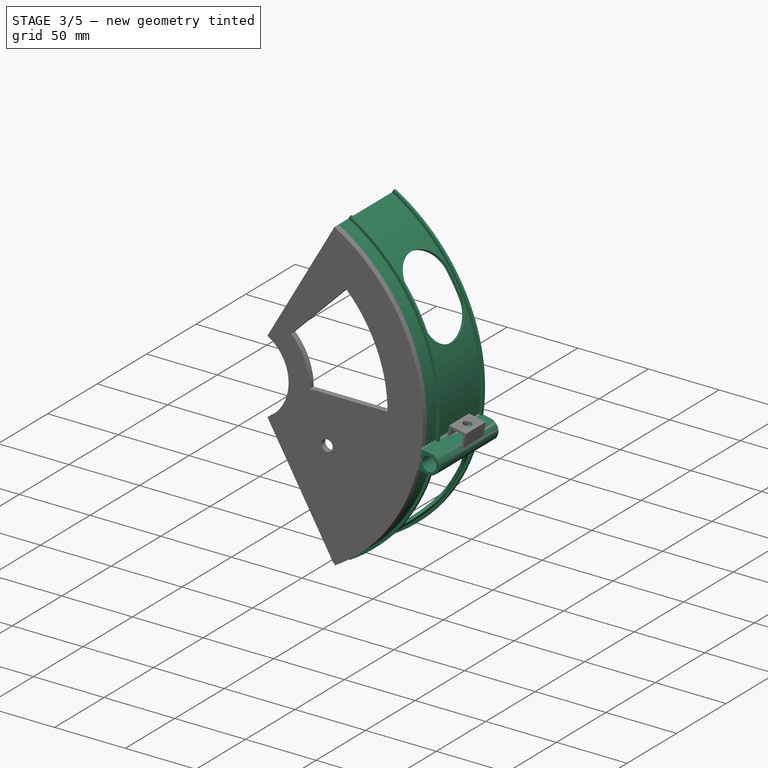
[diagram: stage 3 of 5 — iso view after this stage's code; geometry added in this stage tinted green]
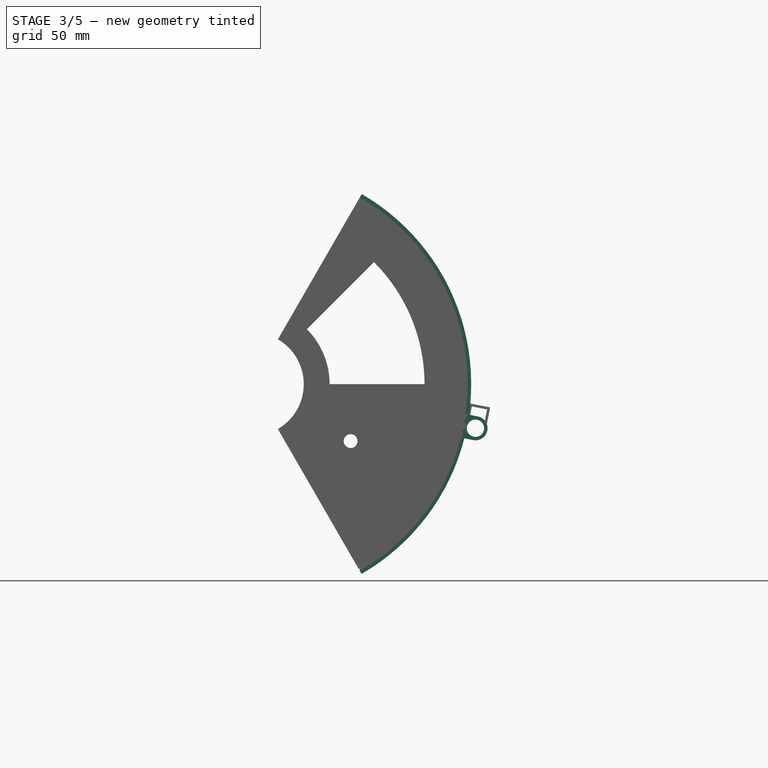
[diagram: stage 3 of 5 — front view after this stage's code; geometry added in this stage tinted green]
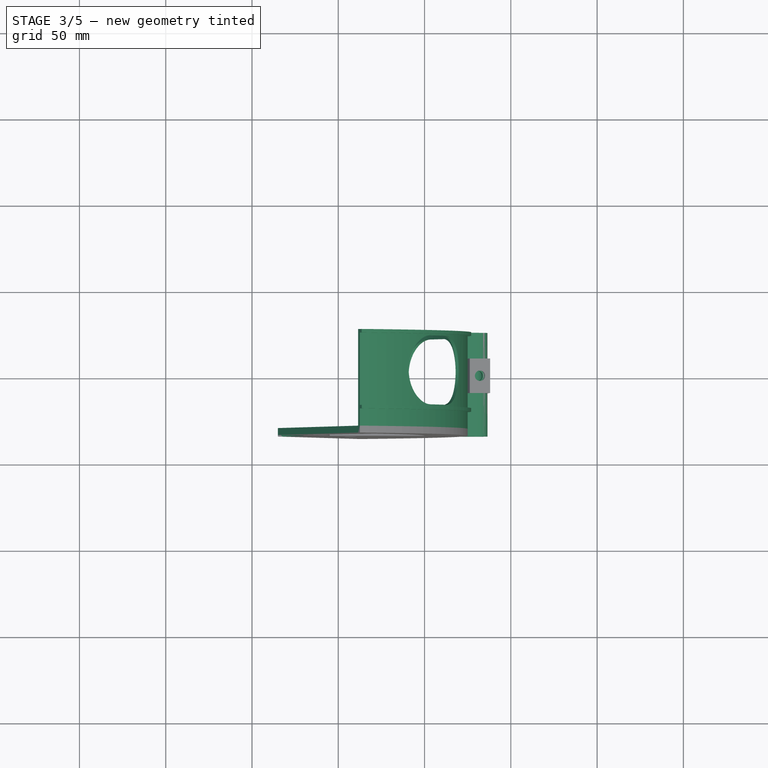
[diagram: stage 3 of 5 — top view after this stage's code; geometry added in this stage tinted green]
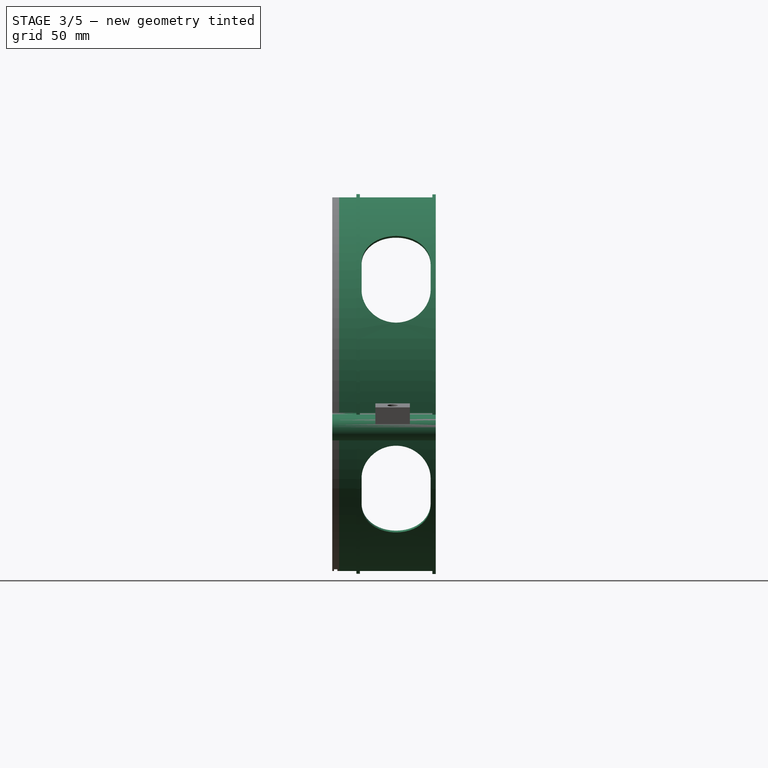
[diagram: stage 3 of 5 — right view after this stage's code; geometry added in this stage tinted green]
FEATURE [Part::MultiFuse] Fusion006
  Shapes = -> [Cut009,Extrude022]
FEATURE [Sketcher::SketchObject] Sketch026
  ExternalGeometry = -> [Fusion006]
  FullyConstrained = true
  MapMode = 5
  Placement = pos=(2.61366,4.4e-15,13.2446) rot=(0,1,0;0.194835rad)
  Support = -> [Fusion006]
  sketch-geometry (3):
    g0: LineSegment StartX=126 StartY=10 StartZ=0 EndX=138 EndY=-10 EndZ=0
    g1: LineSegment StartX=126 StartY=-10 StartZ=0 EndX=138 EndY=10 EndZ=0
    g2: Circle CenterX=132 CenterY=9.8e-15 CenterZ=0 NormalX=0 NormalY=0 NormalZ=1 AngleXU=0 Radius=3
  constraints (7):
    c: Coincident(g0,g-3)
    c: Coincident(g0,g-4)
    c: Coincident(g1,g-3)
    c: Coincident(g1,g-4)
    c: Diameter(g2) = 6
    c: PointOnObject(g2,g1)
    c: PointOnObject(g2,g0)
FEATURE [Part::Extrusion] Extrude023
  Base = -> Sketch026
  Dir = (0.193605,3e-16,0.98108)
  DirMode = 2
  FaceMakerClass = Part::FaceMakerBullseye
  LengthFwd = 200
  LengthRev = 10
  Solid = true
  Symmetric = false
FEATURE [Part::Cut] Cut010
  Base = -> Fusion006
  Tool = -> Extrude023
FEATURE [Sketcher::SketchObject] Sketch027
  ExternalGeometry = -> [Cut010]
  FullyConstrained = true
  Placement = pos=(0,25,0) rot=(0,0.707107,0.707107;3.14159rad)
  sketch-geometry (2):
    g0: Circle CenterX=0 CenterY=0 CenterZ=0 NormalX=0 NormalY=0 NormalZ=1 AngleXU=0 Radius=125
    g1: Circle CenterX=0 CenterY=0 CenterZ=0 NormalX=0 NormalY=0 NormalZ=1 AngleXU=0 Radius=127
  constraints (4):
    c: Coincident(g0,g-1)
    c: Coincident(g1,g0)
    c: PointOnObject(g-3,g0)
    c: Diameter(g1) = 254
FEATURE [Part::Extrusion] Extrude024
  Base = -> Sketch027
  Dir = (1e-16,1,0)
  DirMode = 2
  FaceMakerClass = Part::FaceMakerBullseye
  LengthFwd = 0
  LengthRev = 2
  Solid = true
  Symmetric = false
FEATURE [Part::Extrusion] Extrude025
  Base = -> Sketch027
  Dir = (1e-16,1,0)
  DirMode = 2
  FaceMakerClass = Part::FaceMakerBullseye
  LengthFwd = 0
  LengthRev = 2
  Solid = true
  Symmetric = false
FEATURE [Part::MultiFuse] Fusion007
  Shapes = -> [Cut010,Extrude024,Extrude025]
FEATURE [Sketcher::SketchObject] Sketch028
  ExternalGeometry = -> [Fusion007]
  FullyConstrained = false
  Placement = pos=(0,-19,0) rot=(0,0.707107,0.707107;3.14159rad)
  sketch-geometry (2):
    g0: Circle CenterX=0 CenterY=0 CenterZ=0 NormalX=0 NormalY=0 NormalZ=1 AngleXU=0 Radius=125
    g1: Circle CenterX=0 CenterY=0.208757 CenterZ=0 NormalX=0 NormalY=0 NormalZ=1 AngleXU=0 Radius=127.029
  constraints (4):
    c: Coincident(g0,g-1)
    c: PointOnObject(g1,g-2)
    c: PointOnObject(g-4,g1)
    c: PointOnObject(g-3,g0)
FEATURE [Part::Extrusion] Extrude026
  Base = -> Sketch028
  Dir = (1e-16,1,0)
  DirMode = 2
  FaceMakerClass = Part::FaceMakerBullseye
  LengthFwd = 0
  LengthRev = 2
  Solid = true
  Symmetric = false
FEATURE [Part::Extrusion] Extrude027
  Base = -> Sketch028
  Dir = (1e-16,1,0)
  DirMode = 2
  FaceMakerClass = Part::FaceMakerBullseye
  LengthFwd = 0
  LengthRev = 2
  Solid = true
  Symmetric = false
FEATURE [Part::MultiFuse] Fusion008
  Shapes = -> [Extrude027,Extrude026,Fusion007]
FEATURE [Sketcher::SketchObject] Sketch030
  ExternalGeometry = -> [Sketch023]
  FullyConstrained = false
  Placement = pos=(0,0,0) rot=(0,0.707107,0.707107;3.14159rad)
  sketch-geometry (5):
    g0: LineSegment StartX=-80 StartY=138.564 StartZ=0 EndX=-15 EndY=25.9808 EndZ=0
    g1: LineSegment StartX=-15 StartY=-25.9808 StartZ=0 EndX=-71.3165 EndY=-123.524 EndZ=0
    g2: LineSegment StartX=-71.3165 StartY=-123.524 StartZ=0 EndX=-217.834 EndY=0.626871 EndZ=0
    g3: LineSegment StartX=-217.834 StartY=0.626871 StartZ=0 EndX=-80 EndY=138.564 EndZ=0
    g4: ArcOfCircle CenterX=0 CenterY=0 CenterZ=0 NormalX=0 NormalY=0 NormalZ=1 AngleXU=0 Radius=30 StartAngle=2.0944 EndAngle=4.18879
  constraints (9):
    c: Coincident(g0,g-3)
    c: Coincident(g1,g-4)
    c: Coincident(g2,g1)
    c: Coincident(g3,g2)
    c: Coincident(g3,g0)
    c: Coincident(g4,g-1)
    c: Diameter(g4) = 60
    c: Coincident(g0,g4)
    c: Coincident(g1,g4)
FEATURE [Part::Extrusion] Extrude029
  Base = -> Sketch030
  Dir = (0,1,0)
  DirMode = 2
  FaceMakerClass = Part::FaceMakerBullseye
  LengthFwd = 60
  LengthRev = 60
  Solid = true
  Symmetric = false
FEATURE [Part::MultiFuse] Fusion009
  Shapes = -> [Fusion008,Extrude028]
FEATURE [Part::MultiCommon] Common
  Shapes = -> [Extrude029,Fusion009]
FEATURE [Part::Cut] Cut011
  Base = -> Common
  Tool = -> Extrude030
FEATURE [Sketcher::SketchObject] Sketch033
  ExternalGeometry = -> [Cut011]
  FullyConstrained = false
  Placement = pos=(0,-34,0) rot=(0,0.707107,0.707107;3.14159rad)
  sketch-geometry (5):
    g0: LineSegment StartX=-63.5 StartY=-109.985 StartZ=0 EndX=-15 EndY=-25.9808 EndZ=0
    g1: LineSegment StartX=-65.2242 StartY=-108.972 StartZ=0 EndX=-16.6987 EndY=-24.923 EndZ=0
    g2: LineSegment StartX=-37.7127 StartY=-61.3204 StartZ=0 EndX=-35.9807 EndY=-62.3204 EndZ=0
    g3: ArcOfCircle CenterX=0 CenterY=0 CenterZ=0 NormalX=0 NormalY=0 NormalZ=1 AngleXU=0 Radius=30 StartAngle=4.12207 EndAngle=4.18879
    g4: ArcOfCircle CenterX=0 CenterY=0 CenterZ=0 NormalX=0 NormalY=0 NormalZ=1 AngleXU=0 Radius=127 StartAngle=4.17304 EndAngle=4.18879
  constraints (15):
    c: Perpendicular(g0,g2)
    c: Perpendicular(g1,g2)
    c: PointOnObject(g2,g1)
    c: PointOnObject(g2,g0)
    c: Distance(g2) = 2
    c: Parallel(g1,g-3)
    c: PointOnObject(g-3,g0)
    c: Coincident(g3,g-1)
    c: PointOnObject(g-5,g3)
    c: PointOnObject(g-4,g4)
    c: Coincident(g4,g3)
    c: Coincident(g4,g1)
    c: Coincident(g4,g0)
    c: Coincident(g3,g1)
    c: Coincident(g3,g0)
FEATURE [Part::Extrusion] Extrude032
  Base = -> Sketch033
  Dir = (1e-16,1,0)
  DirMode = 2
  FaceMakerClass = Part::FaceMakerBullseye
  LengthFwd = 2
  LengthRev = 0
  Solid = true
  Symmetric = false
FEATURE [Part::Cut] Cut012
  Base = -> Cut011
  Tool = -> Extrude032
FEATURE [Sketcher::SketchObject] Sketch035
  ExternalGeometry = -> [Cut012]
  FullyConstrained = true
  Placement = pos=(0,0,0) rot=(0,0.707107,0.707107;3.14159rad)
  sketch-geometry (1):
    g0: Circle CenterX=-62 CenterY=-107.387 CenterZ=0 NormalX=0 NormalY=0 NormalZ=1 AngleXU=0 Radius=0.5
  constraints (3):
    c: Diameter(g0) = 1
    c: PointOnObject(g0,g-3)
    c: Distance(g0,g-3) = 1
FEATURE [Part::Extrusion] Extrude034
  Base = -> Sketch035
  Dir = (0,1,0)
  DirMode = 2
  FaceMakerClass = Part::FaceMakerBullseye
  LengthFwd = 50
  LengthRev = 50
  Solid = true
  Symmetric = false
FEATURE [Part::Cut] Cut013
  Base = -> Cut012
  Tool = -> Extrude034
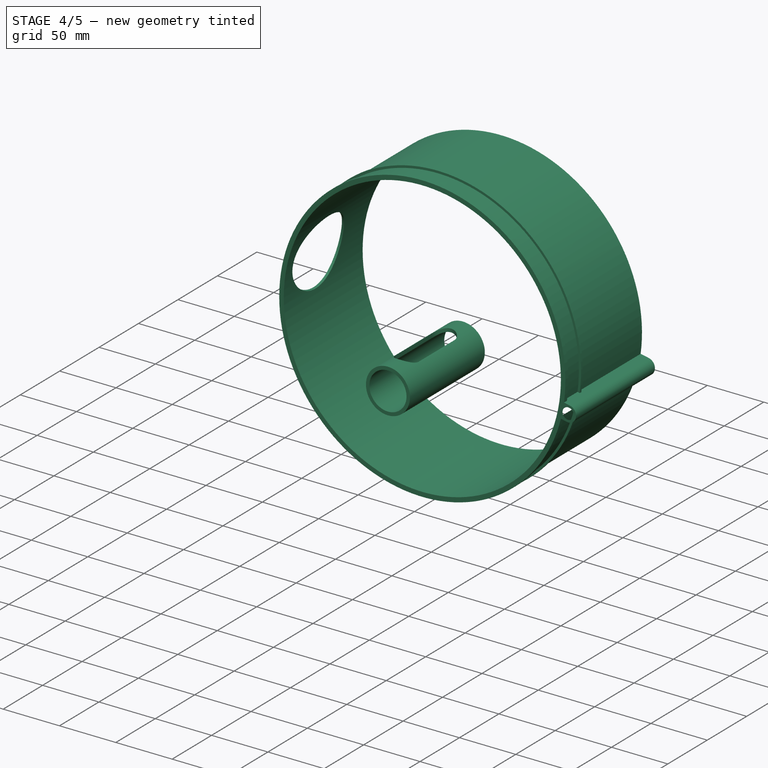
[diagram: stage 4 of 5 — iso view after this stage's code; geometry added in this stage tinted green]
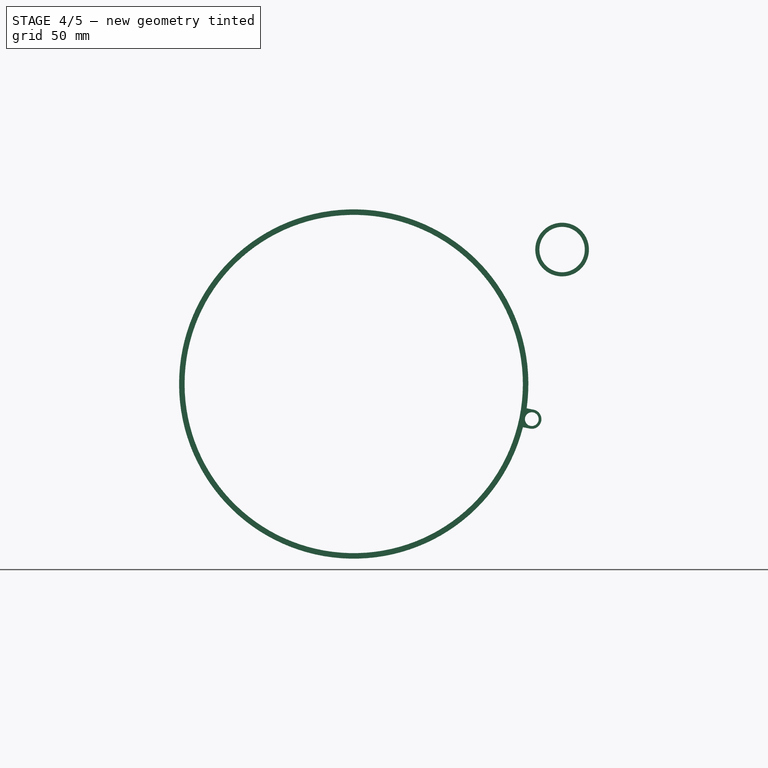
[diagram: stage 4 of 5 — front view after this stage's code; geometry added in this stage tinted green]
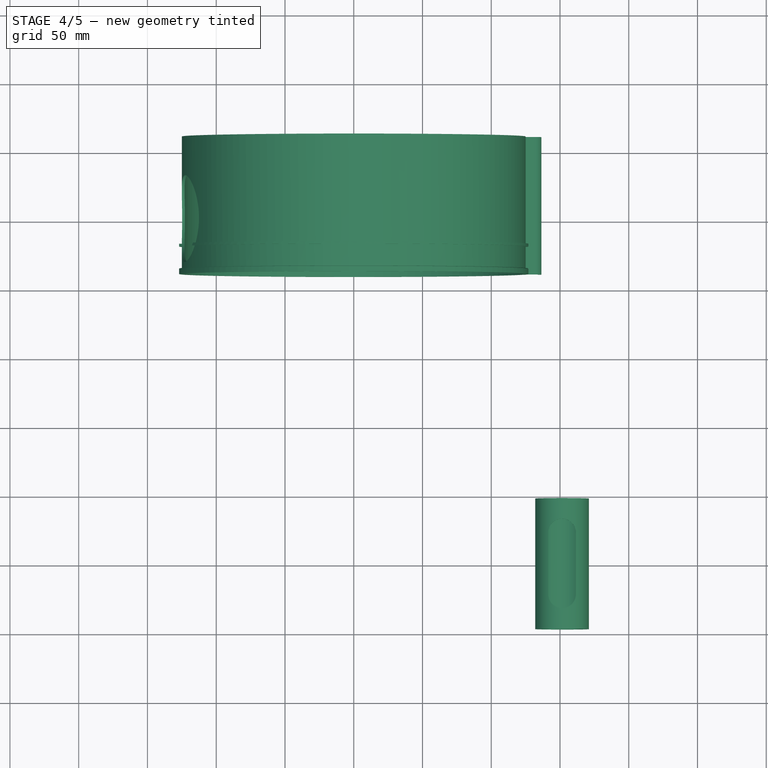
[diagram: stage 4 of 5 — top view after this stage's code; geometry added in this stage tinted green]
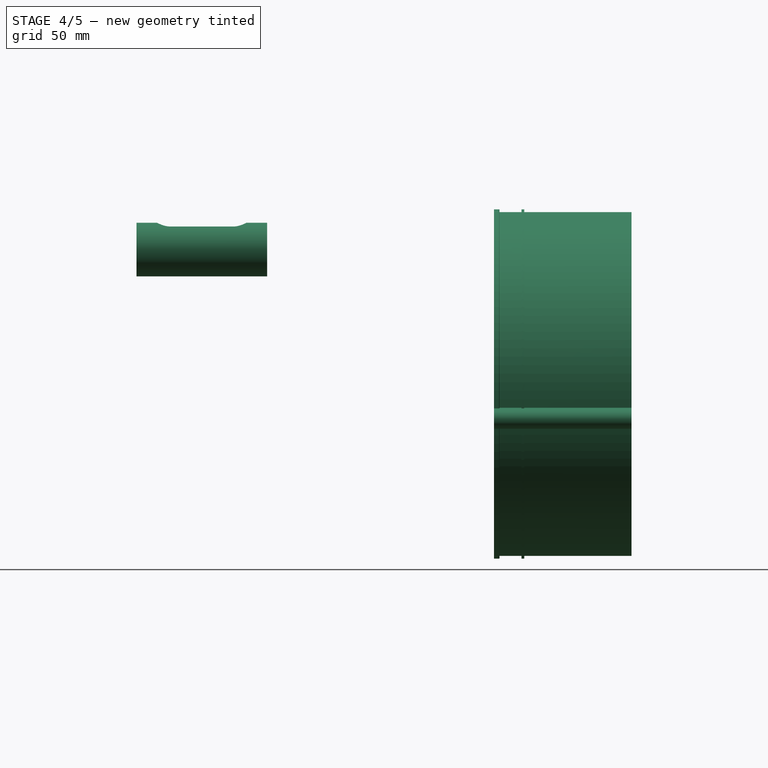
[diagram: stage 4 of 5 — right view after this stage's code; geometry added in this stage tinted green]
FEATURE [Sketcher::SketchObject] Sketch032
  ExternalGeometry = -> [Cut011]
  FullyConstrained = false
  Placement = pos=(0,-34,0) rot=(0,0.707107,0.707107;3.14159rad)
  sketch-geometry (5):
    g0: LineSegment StartX=-62.5 StartY=108.253 StartZ=0 EndX=-15 EndY=25.9808 EndZ=0
    g1: LineSegment StartX=-60.7599 StartY=109.239 StartZ=0 EndX=-13.2346 EndY=26.923 EndZ=0
    g2: LineSegment StartX=-55.2025 StartY=99.6135 StartZ=0 EndX=-56.9345 EndY=98.6135 EndZ=0
    g3: ArcOfCircle CenterX=0 CenterY=0 CenterZ=0 NormalX=0 NormalY=0 NormalZ=1 AngleXU=0 Radius=30 StartAngle=2.02768 EndAngle=2.0944
    g4: ArcOfCircle CenterX=0 CenterY=0 CenterZ=0 NormalX=0 NormalY=0 NormalZ=1 AngleXU=0 Radius=125 StartAngle=2.07839 EndAngle=2.0944
  constraints (15):
    c: Parallel(g0,g-3)
    c: Parallel(g1,g0)
    c: PointOnObject(g-3,g0)
    c: Perpendicular(g1,g2)
    c: PointOnObject(g2,g0)
    c: PointOnObject(g2,g1)
    c: Distance(g2) = 2
    c: Coincident(g3,g-1)
    c: PointOnObject(g-3,g3)
    c: Coincident(g3,g4)
    c: PointOnObject(g-5,g4)
    c: Coincident(g1,g3)
    c: Coincident(g0,g3)
    c: Coincident(g1,g4)
    c: Coincident(g0,g4)
FEATURE [Part::Extrusion] Extrude031
  Base = -> Sketch032
  Dir = (1e-16,1,0)
  DirMode = 2
  FaceMakerClass = Part::FaceMakerBullseye
  LengthFwd = 2
  LengthRev = 0
  Solid = true
  Symmetric = false
FEATURE [Sketcher::SketchObject] Sketch034
  ExternalGeometry = -> [Cut012]
  FullyConstrained = true
  Placement = pos=(0,0,0) rot=(0,0.707107,0.707107;3.14159rad)
  sketch-geometry (2):
    g0: Circle CenterX=-62.5 CenterY=108.253 CenterZ=0 NormalX=0 NormalY=0 NormalZ=1 AngleXU=0 Radius=2
    g1: Circle CenterX=-62 CenterY=107.387 CenterZ=0 NormalX=0 NormalY=0 NormalZ=1 AngleXU=0 Radius=0.5
  constraints (5):
    c: Coincident(g0,g-3)
    c: PointOnObject(g-3,g0)
    c: Diameter(g1) = 1
    c: PointOnObject(g1,g-3)
    c: Distance(g1,g0) = 1
FEATURE [Part::Extrusion] Extrude033
  Base = -> Sketch034
  Dir = (0,1,-5e-16)
  DirMode = 2
  FaceMakerClass = Part::FaceMakerBullseye
  LengthFwd = 25
  LengthRev = 35
  Solid = true
  Symmetric = false
FEATURE [Part::MultiFuse] Fusion010  label="backplate"
  Shapes = -> [Cut013,Extrude033,Extrude031]
FEATURE [Sketcher::SketchObject] Sketch036
  FullyConstrained = false
  Placement = pos=(0,0,0) rot=(0,0.707107,0.707107;3.14159rad)
  sketch-geometry (2):
    g0: Circle CenterX=-151.531 CenterY=97.7733 CenterZ=0 NormalX=0 NormalY=0 NormalZ=1 AngleXU=0 Radius=16.5
    g1: Circle CenterX=-151.531 CenterY=97.7733 CenterZ=0 NormalX=0 NormalY=0 NormalZ=1 AngleXU=0 Radius=19.5
  constraints (3):
    c: Coincident(g1,g0)
    c: Diameter(g0) = 33
    c: Diameter(g1) = 39
FEATURE [Part::Extrusion] Extrude035
  Base = -> Sketch036
  Dir = (0,1,0)
  DirMode = 2
  FaceMakerClass = Part::FaceMakerBullseye
  LengthFwd = 95
  LengthRev = 0
  Solid = true
  Symmetric = false
FEATURE [Sketcher::SketchObject] Sketch038
  ExternalGeometry = -> [Extrude035,Sketch036]
  FullyConstrained = false
  Placement = pos=(0,0,150) rot=(0,0,1;0rad)
  sketch-geometry (6):
    g0: LineSegment StartX=135.031 StartY=95 StartZ=0 EndX=168.031 EndY=2.84e-14 EndZ=0
    g1: LineSegment StartX=135.031 StartY=2.17e-14 StartZ=0 EndX=168.031 EndY=95 EndZ=0
    g2: ArcOfCircle CenterX=151.531 CenterY=70 CenterZ=0 NormalX=0 NormalY=0 NormalZ=1 AngleXU=0 Radius=10 StartAngle=0 EndAngle=3.14159
    g3: ArcOfCircle CenterX=151.531 CenterY=25 CenterZ=0 NormalX=0 NormalY=0 NormalZ=1 AngleXU=0 Radius=10 StartAngle=3.14159 EndAngle=6.28319
    g4: LineSegment StartX=141.531 StartY=70 StartZ=0 EndX=141.531 EndY=25 EndZ=0
    g5: LineSegment StartX=161.531 StartY=70 StartZ=0 EndX=161.531 EndY=25 EndZ=0
  constraints (14):
    c: Coincident(g0,g-3)
    c: Coincident(g0,g-5)
    c: Coincident(g1,g-5)
    c: Coincident(g1,g-3)
    c: Diameter(g3) = 20
    c: Diameter(g2) = 20
    c: DistanceX(g2,g3) = 0
    c: DistanceY(g2,g-4) = 25
    c: DistanceY(g-6,g3) = 25
    c: Vertical(g4)
    c: DistanceX(g3,g-6) = 19.5
    c: Coincident(g3,g5)
    c: Tangent(g2,g5) = 1.5708
    c: Tangent(g2,g4) = -1.5708
FEATURE [Part::Extrusion] Extrude037
  Base = -> Sketch038
  Dir = (0,0,1)
  DirMode = 2
  FaceMakerClass = Part::FaceMakerBullseye
  LengthFwd = 50
  LengthRev = 50
  Solid = true
  Symmetric = false
FEATURE [Part::Cut] Cut014
  Base = -> Extrude035
  Tool = -> Extrude037
FEATURE [Sketcher::SketchObject] Sketch047
  ExternalGeometry = -> [Fusion010]
  FullyConstrained = false
  Placement = pos=(0,260,0) rot=(0,0.707107,0.707107;3.14159rad)
  sketch-geometry (6):
    g0: Circle CenterX=0 CenterY=0 CenterZ=0 NormalX=0 NormalY=0 NormalZ=1 AngleXU=0 Radius=123
    g1: ArcOfCircle CenterX=0 CenterY=0 CenterZ=0 NormalX=0 NormalY=0 NormalZ=1 AngleXU=0 Radius=125 StartAngle=3.39246 EndAngle=9.56358
    g2: Circle CenterX=-129.503 CenterY=-25.5558 CenterZ=0 NormalX=0 NormalY=0 NormalZ=1 AngleXU=0 Radius=5
    g3: ArcOfCircle CenterX=-129.503 CenterY=-25.5558 CenterZ=0 NormalX=0 NormalY=0 NormalZ=1 AngleXU=0 Radius=7 StartAngle=1.76563 EndAngle=4.90722
    g4: LineSegment StartX=-130.858 StartY=-18.6883 StartZ=0 EndX=-123.798 EndY=-17.2951 EndZ=0
    g5: LineSegment StartX=-128.147 StartY=-32.4234 StartZ=0 EndX=-121.087 EndY=-31.0302 EndZ=0
  constraints (14):
    c: Coincident(g0,g-1)
    c: PointOnObject(g-3,g0)
    c: Coincident(g1,g0)
    c: PointOnObject(g-4,g1)
    c: Coincident(g2,g-6)
    c: PointOnObject(g-5,g2)
    c: Coincident(g3,g2)
    c: PointOnObject(g-7,g3)
    c: PointOnObject(g-7,g4)
    c: PointOnObject(g-8,g5)
    c: PointOnObject(g-8,g5)
    c: Tangent(g3,g4) = 1.5708
    c: Coincident(g1,g5)
    c: Coincident(g1,g4)
FEATURE [Part::Extrusion] Extrude045
  Base = -> Sketch047
  Dir = (1e-16,1,-5e-16)
  DirMode = 2
  FaceMakerClass = Part::FaceMakerBullseye
  LengthFwd = 100
  LengthRev = 0
  Solid = true
  Symmetric = false
FEATURE [Sketcher::SketchObject] Sketch048
  ExternalGeometry = -> [Extrude045,Fusion010]
  FullyConstrained = true
  Placement = pos=(0,280,0) rot=(0,0.707107,0.707107;3.14159rad)
  sketch-geometry (2):
    g0: Circle CenterX=0 CenterY=0 CenterZ=0 NormalX=0 NormalY=0 NormalZ=1 AngleXU=0 Radius=125
    g1: Circle CenterX=0 CenterY=0 CenterZ=0 NormalX=0 NormalY=0 NormalZ=1 AngleXU=0 Radius=127
  constraints (4):
    c: Coincident(g1,g0)
    c: Coincident(g0,g-1)
    c: PointOnObject(g-4,g1)
    c: PointOnObject(g-3,g0)
FEATURE [Part::Extrusion] Extrude046
  Base = -> Sketch048
  Dir = (0,1,0)
  DirMode = 2
  FaceMakerClass = Part::FaceMakerBullseye
  LengthFwd = 2
  LengthRev = 0
  Solid = true
  Symmetric = false
FEATURE [Sketcher::SketchObject] Sketch049
  ExternalGeometry = -> [Extrude046,Extrude045]
  FullyConstrained = true
  Placement = pos=(0,260,0) rot=(0,0.707107,0.707107;3.14159rad)
  sketch-geometry (2):
    g0: Circle CenterX=0 CenterY=0 CenterZ=0 NormalX=0 NormalY=0 NormalZ=1 AngleXU=0 Radius=127
    g1: Circle CenterX=0 CenterY=0 CenterZ=0 NormalX=0 NormalY=0 NormalZ=1 AngleXU=0 Radius=125
  constraints (9):
    c: Coincident(g0,g-1)
    c: Coincident(g1,g0)
    c: Diameter(g-3) = 254
    c: Diameter(g-3) = 254
    c: Diameter(g-4) = 250
    c: Diameter(g-3) = 254
    c: Diameter(g-4) = 250
    c: Diameter(g1) = 250
    c: Diameter(g0) = 254
FEATURE [Part::Extrusion] Extrude047
  Base = -> Sketch049
  Dir = (0,1,0)
  DirMode = 2
  FaceMakerClass = Part::FaceMakerBullseye
  LengthFwd = 4
  LengthRev = 0
  Solid = true
  Symmetric = false
FEATURE [Part::Chamfer] Chamfer
  Base = -> Extrude047
  Edges = 1 edges r=0.2: [Edge3]
FEATURE [Part::MultiFuse] Fusion012
  Shapes = -> [Chamfer,Extrude046,Extrude045]
FEATURE [Sketcher::SketchObject] Sketch050  label="UTA helper"
  ExternalGeometry = -> [Fusion012]
  FullyConstrained = false
  Placement = pos=(0,300,0) rot=(0,0.707107,0.707107;3.14159rad)
  sketch-geometry (4):
    g0: LineSegment StartX=-129.503 StartY=-25.5558 StartZ=0 EndX=0 EndY=0 EndZ=0
    g1: LineSegment StartX=0 StartY=0 StartZ=0 EndX=57.1294 EndY=167.464 EndZ=0
    g2: LineSegment StartX=0 StartY=0 StartZ=0 EndX=152.074 EndY=-173.937 EndZ=0
    g3: LineSegment StartX=0 StartY=0 StartZ=0 EndX=163.902 EndY=32.3443 EndZ=0
  constraints (8):
    c: Coincident(g0,g-3)
    c: Coincident(g0,g-1)
    c: Coincident(g1,g0)
    c: Coincident(g2,g0)
    c: Angle(g1,g0) = 2.0944
    c: Angle(g2,g1) = 2.0944
    c: Coincident(g3,g0)
    c: Angle(g3,g1) = 1.0472
FEATURE [Sketcher::SketchObject] Sketch052
  FullyConstrained = false
  MapMode = 7
  Placement = pos=(0,300,0) rot=(0.61135,0.61135,0.502497;2.21031rad)
  Support = -> [Sketch050]
  sketch-geometry (2):
    g0: Circle CenterX=0 CenterY=0 CenterZ=0 NormalX=0 NormalY=0 NormalZ=1 AngleXU=0 Radius=31.5
    g1: Circle CenterX=0 CenterY=0.405501 CenterZ=0 NormalX=0 NormalY=0 NormalZ=1 AngleXU=0 Radius=33.5
  constraints (4):
    c: Diameter(g0) = 63
    c: Coincident(g0,g-1)
    c: PointOnObject(g1,g-2)
    c: Diameter(g1) = 67
FEATURE [Part::Extrusion] Extrude049
  Base = -> Sketch052
  Dir = (0.98108,1e-16,-0.193605)
  DirMode = 2
  FaceMakerClass = Part::FaceMakerBullseye
  LengthFwd = 0
  LengthRev = 130
  Solid = true
  Symmetric = false
FEATURE [Sketcher::SketchObject] Sketch053
  ExternalGeometry = -> [Sketch052]
  FullyConstrained = true
  MapMode = 11
  Placement = pos=(-127.54,300,25.1686) rot=(0.77253,0,0.634978;3.14159rad)
  Support = -> [Extrude049]
  sketch-geometry (5):
    g0: LineSegment StartX=40 StartY=-40 StartZ=0 EndX=-40 EndY=-40 EndZ=0
    g1: LineSegment StartX=-40 StartY=-40 StartZ=0 EndX=-40 EndY=40 EndZ=0
    g2: LineSegment StartX=-40 StartY=40 StartZ=0 EndX=40 EndY=40 EndZ=0
    g3: LineSegment StartX=40 StartY=40 StartZ=0 EndX=40 EndY=-40 EndZ=0
    g4: Circle CenterX=0 CenterY=0 CenterZ=0 NormalX=0 NormalY=0 NormalZ=1 AngleXU=0 Radius=31.5
  constraints (15):
    c: Coincident(g0,g1)
    c: Coincident(g1,g2)
    c: Coincident(g2,g3)
    c: Coincident(g3,g0)
    c: Horizontal(g0)
    c: Horizontal(g2)
    c: Vertical(g1)
    c: Vertical(g3)
    c: Distance(g3) = 80
    c: Distance(g0) = 80
    c: DistanceX(g-1,g2) = 40
    c: DistanceY(g0,g-1) = 40
    c: Diameter(g-3) = 63
    c: Coincident(g4,g-1)
    c: Diameter(g4) = 63
FEATURE [Part::Extrusion] Extrude050
  Base = -> Sketch053
  Dir = (0.98108,2e-16,-0.193605)
  DirMode = 2
  FaceMakerClass = Part::FaceMakerBullseye
  LengthFwd = 25
  LengthRev = 0
  Solid = true
  Symmetric = false
FEATURE [Sketcher::SketchObject] Sketch054
  ExternalGeometry = -> [Fusion012]
  FullyConstrained = true
  Placement = pos=(0,300,0) rot=(0,0.707107,0.707107;3.14159rad)
  sketch-geometry (1):
    g0: Circle CenterX=0 CenterY=0 CenterZ=0 NormalX=0 NormalY=0 NormalZ=1 AngleXU=0 Radius=123
  constraints (4):
    c: Coincident(g0,g-1)
    c: Diameter(g-3) = 246
    c: Diameter(g-3) = 246
    c: Diameter(g0) = 246
FEATURE [Part::Extrusion] Extrude051
  Base = -> Sketch054
  Dir = (0,1,0)
  DirMode = 2
  FaceMakerClass = Part::FaceMakerBullseye
  LengthFwd = 150
  LengthRev = 150
  Solid = true
  Symmetric = false
FEATURE [Part::MultiFuse] Fusion013
  Shapes = -> [Extrude050,Extrude049]
FEATURE [Part::Cut] Cut022
  Base = -> Fusion013
  Tool = -> Extrude051
FEATURE [Sketcher::SketchObject] Sketch055
  ExternalGeometry = -> [Sketch052]
  FullyConstrained = true
  MapMode = 11
  Placement = pos=(-127.54,300,25.1686) rot=(0.77253,0,0.634978;3.14159rad)
  Support = -> [Cut022]
  sketch-geometry (1):
    g0: Circle CenterX=0 CenterY=0 CenterZ=0 NormalX=0 NormalY=0 NormalZ=1 AngleXU=0 Radius=31.5
  constraints (3):
    c: Coincident(g0,g-1)
    c: Diameter(g-3) = 63
    c: Diameter(g0) = 63
FEATURE [Part::Extrusion] Extrude052
  Base = -> Sketch055
  Dir = (0.98108,2e-16,-0.193605)
  DirMode = 2
  FaceMakerClass = Part::FaceMakerBullseye
  LengthFwd = 150
  LengthRev = 150
  Solid = true
  Symmetric = false
FEATURE [Part::Cut] Cut023
  Base = -> Fusion012
  Tool = -> Extrude052
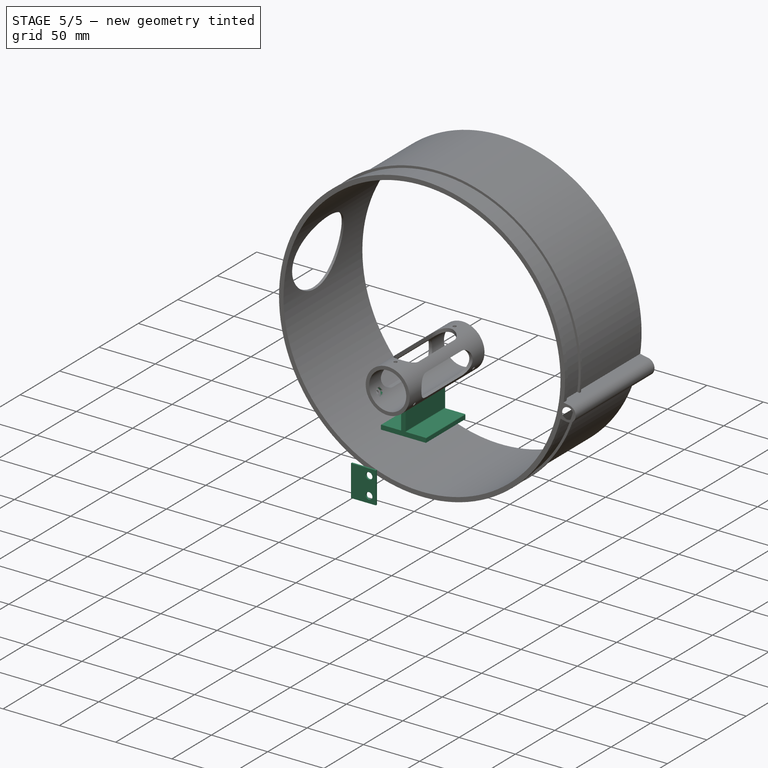
[diagram: stage 5 of 5 — iso view after this stage's code; geometry added in this stage tinted green]
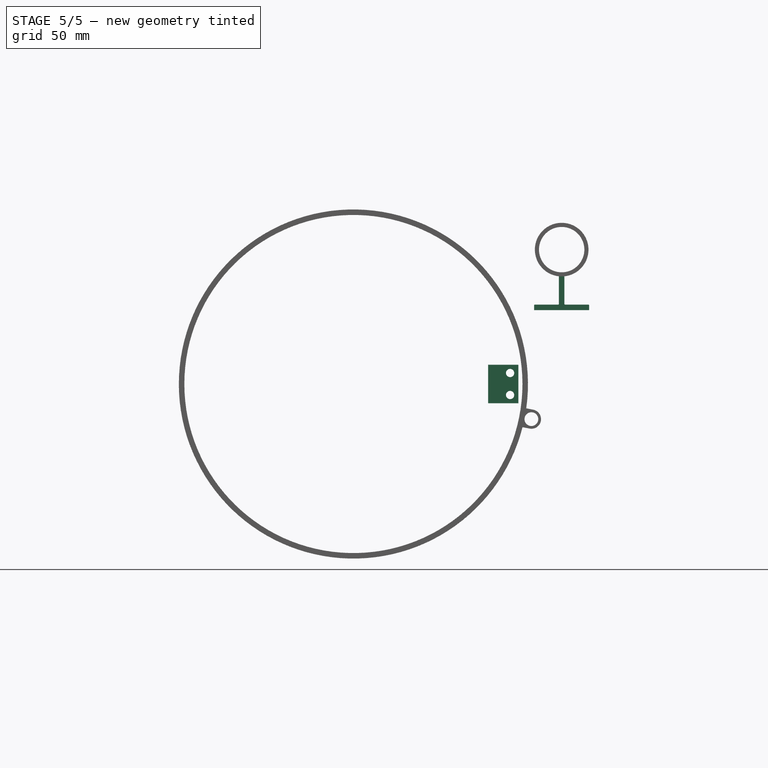
[diagram: stage 5 of 5 — front view after this stage's code; geometry added in this stage tinted green]
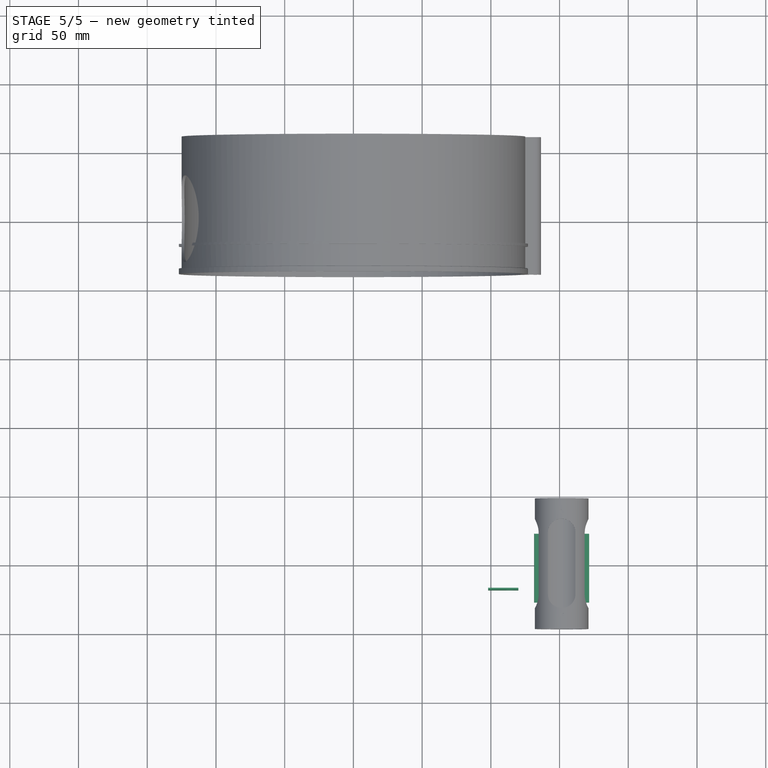
[diagram: stage 5 of 5 — top view after this stage's code; geometry added in this stage tinted green]
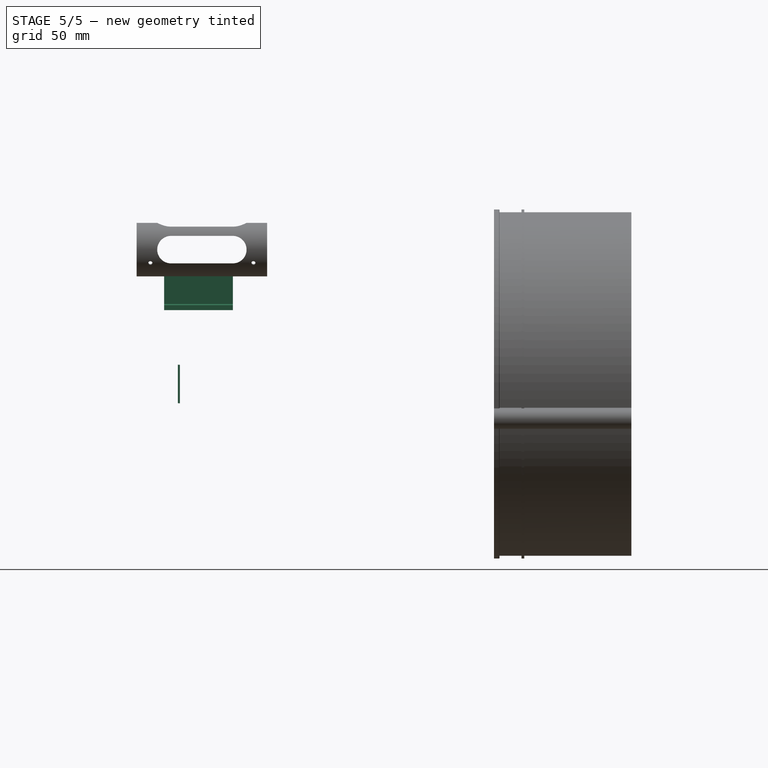
[diagram: stage 5 of 5 — right view after this stage's code; geometry added in this stage tinted green]
FEATURE [Sketcher::SketchObject] Sketch020
  ExternalGeometry = -> [Fusion005]
  FullyConstrained = true
  Placement = pos=(0,30,0) rot=(0,0.707107,0.707107;3.14159rad)
  sketch-geometry (7):
    g0: LineSegment StartX=-120 StartY=-14 StartZ=0 EndX=-98 EndY=-14 EndZ=0
    g1: LineSegment StartX=-98 StartY=-14 StartZ=0 EndX=-98 EndY=14 EndZ=0
    g2: LineSegment StartX=-98 StartY=14 StartZ=0 EndX=-120 EndY=14 EndZ=0
    g3: LineSegment StartX=-120 StartY=14 StartZ=0 EndX=-120 EndY=-14 EndZ=0
    g4: Circle CenterX=0 CenterY=0 CenterZ=0 NormalX=0 NormalY=0 NormalZ=1 AngleXU=0 Radius=100
    g5: Circle CenterX=-114 CenterY=8 CenterZ=0 NormalX=0 NormalY=0 NormalZ=1 AngleXU=0 Radius=3
    g6: Circle CenterX=-114 CenterY=-8 CenterZ=0 NormalX=0 NormalY=0 NormalZ=1 AngleXU=0 Radius=3
  constraints (18):
    c: Coincident(g0,g1)
    c: Coincident(g1,g2)
    c: Coincident(g2,g3)
    c: Coincident(g3,g0)
    c: Horizontal(g0)
    c: Horizontal(g2)
    c: Vertical(g1)
    c: Vertical(g3)
    c: PointOnObject(g-7,g3)
    c: PointOnObject(g-7,g2)
    c: PointOnObject(g-7,g0)
    c: Coincident(g4,g-1)
    c: Diameter(g4) = 200
    c: Distance(g2) = 22
    c: Coincident(g5,g-3)
    c: Coincident(g6,g-4)
    c: Diameter(g5) = 6
    c: Diameter(g6) = 6
FEATURE [Part::Extrusion] Extrude017  label="pestaña primario"
  Base = -> Sketch020
  Dir = (0,1,0)
  DirMode = 2
  FaceMakerClass = Part::FaceMakerBullseye
  LengthFwd = 1.5
  LengthRev = 0
  Solid = true
  Symmetric = false
FEATURE [Sketcher::SketchObject] Sketch037
  ExternalGeometry = -> [Extrude035]
  FullyConstrained = false
  Placement = pos=(0,20,0) rot=(0,0.707107,0.707107;3.14159rad)
  sketch-geometry (13):
    g0: LineSegment StartX=-171.02 StartY=57.7733 StartZ=0 EndX=-154.031 EndY=57.7733 EndZ=0
    g1: LineSegment StartX=-131.531 StartY=57.2733 StartZ=0 EndX=-131.531 EndY=53.7733 EndZ=0
    g2: LineSegment StartX=-131.531 StartY=53.7733 StartZ=0 EndX=-171.52 EndY=53.7733 EndZ=0
    g3: LineSegment StartX=-171.52 StartY=53.7733 StartZ=0 EndX=-171.52 EndY=57.2733 EndZ=0
    g4: LineSegment StartX=-153.531 StartY=79.2825 StartZ=0 EndX=-149.531 EndY=79.2825 EndZ=0
    g5: LineSegment StartX=-149.531 StartY=79.2825 StartZ=0 EndX=-149.531 EndY=58.2733 EndZ=0
    g6: LineSegment StartX=-153.531 StartY=58.2733 StartZ=0 EndX=-153.531 EndY=79.2825 EndZ=0
    g7: LineSegment StartX=-151.531 StartY=119.057 StartZ=0 EndX=-151.531 EndY=30.2597 EndZ=0
    g8: ArcOfCircle CenterX=-171.02 CenterY=57.2733 CenterZ=0 NormalX=0 NormalY=0 NormalZ=1 AngleXU=0 Radius=0.5 StartAngle=1.5708 EndAngle=3.14159
    g9: ArcOfCircle CenterX=-132.031 CenterY=57.2733 CenterZ=0 NormalX=0 NormalY=0 NormalZ=1 AngleXU=0 Radius=0.5 StartAngle=-3.6e-15 EndAngle=1.5708
    g10: LineSegment StartX=-149.031 StartY=57.7733 StartZ=0 EndX=-132.031 EndY=57.7733 EndZ=0
    g11: ArcOfCircle CenterX=-154.031 CenterY=58.2733 CenterZ=0 NormalX=0 NormalY=0 NormalZ=1 AngleXU=0 Radius=0.5 StartAngle=4.71239 EndAngle=6.28319
    g12: ArcOfCircle CenterX=-149.031 CenterY=58.2733 CenterZ=0 NormalX=0 NormalY=0 NormalZ=1 AngleXU=0 Radius=0.5 StartAngle=3.14159 EndAngle=4.71239
  constraints (28):
    c: Coincident(g1,g2)
    c: Coincident(g2,g3)
    c: Horizontal(g0)
    c: Horizontal(g2)
    c: Vertical(g1)
    c: Vertical(g3)
    c: Coincident(g4,g5)
    c: Coincident(g6,g4)
    c: Horizontal(g4)
    c: Vertical(g5)
    c: Vertical(g6)
    c: Distance(g4,g4) = 4
    c: Vertical(g7)
    c: PointOnObject(g-3,g7)
    c: DistanceX(g4,g-3) = 2
    c: Diameter(g9) = 1
    c: Diameter(g8) = 1
    c: Tangent(g8,g0) = 1.5708
    c: Tangent(g8,g3) = 1.5708
    c: Tangent(g9,g1) = 1.5708
    c: Coincident(g9,g10) = 1.5708
    c: Tangent(g0,g10)
    c: Diameter(g11) = 1
    c: Diameter(g12) = 1
    c: Tangent(g11,g0) = -1.5708
    c: Tangent(g11,g6) = -1.5708
    c: Tangent(g12,g5) = -1.5708
    c: Tangent(g12,g10) = -1.5708
FEATURE [Part::Extrusion] Extrude036
  Base = -> Sketch037
  Dir = (1e-16,1,0)
  DirMode = 2
  FaceMakerClass = Part::FaceMakerBullseye
  LengthFwd = 50
  LengthRev = 0
  Solid = true
  Symmetric = false
FEATURE [Sketcher::SketchObject] Sketch039
  ExternalGeometry = -> [Cut014,Sketch036]
  FullyConstrained = true
  Placement = pos=(0,0,0) rot=(0.57735,0.57735,0.57735;2.0944rad)
  sketch-geometry (7):
    g0: LineSegment StartX=2.6e-14 StartY=117.273 StartZ=0 EndX=95 EndY=78.2733 EndZ=0
    g1: LineSegment StartX=95 StartY=117.273 StartZ=0 EndX=1.42e-14 EndY=78.2733 EndZ=0
    g2: ArcOfCircle CenterX=25 CenterY=97.7733 CenterZ=0 NormalX=0 NormalY=0 NormalZ=1 AngleXU=0 Radius=10 StartAngle=1.5708 EndAngle=4.71239
    g3: ArcOfCircle CenterX=70 CenterY=97.7733 CenterZ=0 NormalX=0 NormalY=0 NormalZ=1 AngleXU=0 Radius=10 StartAngle=4.71239 EndAngle=7.85398
    g4: GeomPoint X=47.5 Y=97.7733 Z=0
    g5: LineSegment StartX=25 StartY=87.7733 StartZ=0 EndX=70 EndY=87.7733 EndZ=0
    g6: LineSegment StartX=25 StartY=107.773 StartZ=0 EndX=70 EndY=107.773 EndZ=0
  constraints (16):
    c: Coincident(g0,g-5)
    c: Coincident(g0,g-6)
    c: Coincident(g1,g-6)
    c: Coincident(g1,g-5)
    c: Diameter(g2) = 20
    c: Diameter(g3) = 20
    c: PointOnObject(g4,g0)
    c: PointOnObject(g4,g1)
    c: DistanceY(g3,g4) = 0
    c: DistanceY(g2,g4) = 0
    c: DistanceX(g0,g2) = 25
    c: DistanceX(g3,g1) = 25
    c: Tangent(g2,g6) = 1.5708
    c: Tangent(g2,g5) = -1.5708
    c: Tangent(g3,g6) = 1.5708
    c: Tangent(g3,g5) = -1.5708
FEATURE [Part::Extrusion] Extrude038
  Base = -> Sketch039
  Dir = (1,0,0)
  DirMode = 2
  FaceMakerClass = Part::FaceMakerBullseye
  LengthFwd = 250
  LengthRev = 0
  Solid = true
  Symmetric = false
FEATURE [Part::Cut] Cut015
  Base = -> Cut014
  Tool = -> Extrude038
FEATURE [Sketcher::SketchObject] Sketch040
  ExternalGeometry = -> [Cut015,Sketch036]
  FullyConstrained = false
  Placement = pos=(0,0,100) rot=(0,0,1;0rad)
  sketch-geometry (5):
    g0: Circle CenterX=151.531 CenterY=2.17e-14 CenterZ=0 NormalX=0 NormalY=0 NormalZ=1 AngleXU=0 Radius=19.5
    g1: LineSegment StartX=151.531 StartY=-45.9569 StartZ=0 EndX=151.531 EndY=123.679 EndZ=0
    g2: Circle CenterX=151.531 CenterY=10 CenterZ=0 NormalX=0 NormalY=0 NormalZ=1 AngleXU=0 Radius=1.5
    g3: Circle CenterX=151.531 CenterY=95 CenterZ=0 NormalX=0 NormalY=0 NormalZ=1 AngleXU=0 Radius=16.5
    g4: Circle CenterX=151.531 CenterY=85 CenterZ=0 NormalX=0 NormalY=0 NormalZ=1 AngleXU=0 Radius=1.5
  constraints (14):
    c: PointOnObject(g-4,g0)
    c: PointOnObject(g-4,g0)
    c: PointOnObject(g0,g-4)
    c: Vertical(g1)
    c: PointOnObject(g0,g1)
    c: Diameter(g2) = 3
    c: PointOnObject(g2,g1)
    c: DistanceY(g0,g2) = 10
    c: PointOnObject(g3,g-7)
    c: PointOnObject(g-7,g3)
    c: PointOnObject(g-7,g3)
    c: Diameter(g4) = 3
    c: DistanceX(g4,g3) = 0
    c: DistanceY(g4,g3) = 10
FEATURE [Part::Extrusion] Extrude039
  Base = -> Sketch040
  Dir = (0,0,1)
  DirMode = 2
  FaceMakerClass = Part::FaceMakerBullseye
  LengthFwd = 150
  LengthRev = 0
  Solid = true
  Symmetric = false
FEATURE [Part::Cut] Cut016
  Base = -> Cut015
  Tool = -> Extrude039
FEATURE [Sketcher::SketchObject] Sketch041
  ExternalGeometry = -> [Cut016,Sketch040]
  FullyConstrained = true
  Placement = pos=(0,0,90) rot=(0,0,1;0rad)
  sketch-geometry (14):
    g0: LineSegment StartX=153.407 StartY=81.75 StartZ=0 EndX=155.284 EndY=85 EndZ=0
    g1: LineSegment StartX=155.284 StartY=85 StartZ=0 EndX=153.407 EndY=88.25 EndZ=0
    g2: LineSegment StartX=153.407 StartY=88.25 StartZ=0 EndX=149.655 EndY=88.25 EndZ=0
    g3: LineSegment StartX=149.655 StartY=88.25 StartZ=0 EndX=147.778 EndY=85 EndZ=0
    g4: LineSegment StartX=147.778 StartY=85 StartZ=0 EndX=149.655 EndY=81.75 EndZ=0
    g5: LineSegment StartX=149.655 StartY=81.75 StartZ=0 EndX=153.407 EndY=81.75 EndZ=0
    g6: Circle CenterX=151.531 CenterY=85 CenterZ=0 NormalX=0 NormalY=0 NormalZ=1 AngleXU=0 Radius=3.75278
    g7: LineSegment StartX=153.407 StartY=6.75 StartZ=0 EndX=155.284 EndY=10 EndZ=0
    g8: LineSegment StartX=155.284 StartY=10 StartZ=0 EndX=153.407 EndY=13.25 EndZ=0
    g9: LineSegment StartX=153.407 StartY=13.25 StartZ=0 EndX=149.655 EndY=13.25 EndZ=0
    g10: LineSegment StartX=149.655 StartY=13.25 StartZ=0 EndX=147.778 EndY=10 EndZ=0
    g11: LineSegment StartX=147.778 StartY=10 StartZ=0 EndX=149.655 EndY=6.75 EndZ=0
    g12: LineSegment StartX=149.655 StartY=6.75 StartZ=0 EndX=153.407 EndY=6.75 EndZ=0
    g13: Circle CenterX=151.531 CenterY=10 CenterZ=0 NormalX=0 NormalY=0 NormalZ=1 AngleXU=0 Radius=3.75278
  constraints (32):
    c: Coincident(g0,g1)
    c: Coincident(g1,g2)
    c: Coincident(g2,g3)
    c: Coincident(g3,g4)
    c: Coincident(g4,g5)
    c: Coincident(g5,g0)
    c: Equal(g0, g1-g5) x5
    c: PointOnObject(g0,g6)
    c: PointOnObject(g1,g6)
    c: PointOnObject(g2,g6)
    c: PointOnObject(g3,g6)
    c: PointOnObject(g4,g6)
    c: PointOnObject(g5,g6)
    c: Coincident(g7,g8)
    c: Coincident(g8,g9)
    c: Coincident(g9,g10)
    c: Coincident(g10,g11)
    c: Coincident(g11,g12)
    c: Coincident(g12,g7)
    c: Equal(g7, g8-g12) x5
    c: PointOnObject(g7,g13)
    c: PointOnObject(g8,g13)
    c: PointOnObject(g9,g13)
    c: PointOnObject(g10,g13)
    c: PointOnObject(g11,g13)
    c: PointOnObject(g12,g13)
    c: Distance(g8,g10) = 6.5
    c: Distance(g1,g3) = 6.5
    c: Horizontal(g2)
    c: Horizontal(g9)
    c: Coincident(g6,g-5)
    c: Coincident(g13,g-6)
FEATURE [Part::Extrusion] Extrude040
  Base = -> Sketch041
  Dir = (0,0,1)
  DirMode = 2
  FaceMakerClass = Part::FaceMakerBullseye
  LengthFwd = 26
  LengthRev = 0
  Solid = true
  Symmetric = false
FEATURE [Part::Cut] Cut017
  Base = -> Cut016
  Tool = -> Extrude040
FEATURE [Sketcher::SketchObject] Sketch042
  ExternalGeometry = -> [Cut017]
  FullyConstrained = false
  Placement = pos=(0,0,0) rot=(0,0.707107,0.707107;3.14159rad)
  sketch-geometry (3):
    g0: LineSegment StartX=-151.531 StartY=97.7733 StartZ=0 EndX=-217.594 EndY=59.6316 EndZ=0
    g1: LineSegment StartX=-151.531 StartY=97.7733 StartZ=0 EndX=-87.0321 EndY=60.5348 EndZ=0
    g2: LineSegment StartX=-151.531 StartY=97.7733 StartZ=0 EndX=-151.531 EndY=159.043 EndZ=0
  constraints (6):
    c: Coincident(g0,g-3)
    c: Coincident(g1,g0)
    c: Coincident(g2,g0)
    c: Vertical(g2)
    c: Angle(g2,g0) = 2.0944
    c: Angle(g1,g2) = 2.0944
FEATURE [Sketcher::SketchObject] Sketch043
  ExternalGeometry = -> [Cut017]
  FullyConstrained = true
  MapMode = 7
  Placement = pos=(151.531,2.17e-14,97.7733) rot=(0.447214,-0.447214,-0.774597;1.82348rad)
  Support = -> [Sketch042]
  sketch-geometry (2):
    g0: Circle CenterX=-10 CenterY=0 CenterZ=0 NormalX=0 NormalY=0 NormalZ=1 AngleXU=0 Radius=1.5
    g1: Circle CenterX=-85 CenterY=0 CenterZ=0 NormalX=0 NormalY=0 NormalZ=1 AngleXU=0 Radius=1.5
  constraints (6):
    c: Diameter(g1) = 3
    c: Diameter(g0) = 3
    c: PointOnObject(g0,g-1)
    c: PointOnObject(g1,g-1)
    c: DistanceX(g0,g-1) = 10
    c: DistanceX(g-3,g1) = 10
FEATURE [Part::Extrusion] Extrude041
  Base = -> Sketch043
  Dir = (-0.866025,0,0.5)
  DirMode = 2
  FaceMakerClass = Part::FaceMakerBullseye
  LengthFwd = 0
  LengthRev = 75
  Solid = true
  Symmetric = false
FEATURE [Part::Cut] Cut018
  Base = -> Cut017
  Tool = -> Extrude041
FEATURE [Sketcher::SketchObject] Sketch044
  ExternalGeometry = -> [Sketch043]
  FullyConstrained = true
  MapMode = 7
  Placement = pos=(151.531,2.17e-14,97.7733) rot=(0.447214,-0.447214,-0.774597;1.82348rad)
  Support = -> [Sketch042]
  sketch-geometry (14):
    g0: LineSegment StartX=-83.1236 StartY=-3.25 StartZ=0 EndX=-81.2472 EndY=0 EndZ=0
    g1: LineSegment StartX=-81.2472 StartY=0 StartZ=0 EndX=-83.1236 EndY=3.25 EndZ=0
    g2: LineSegment StartX=-83.1236 StartY=3.25 StartZ=0 EndX=-86.8764 EndY=3.25 EndZ=0
    g3: LineSegment StartX=-86.8764 StartY=3.25 StartZ=0 EndX=-88.7528 EndY=4e-16 EndZ=0
    g4: LineSegment StartX=-88.7528 StartY=4e-16 StartZ=0 EndX=-86.8764 EndY=-3.25 EndZ=0
    g5: LineSegment StartX=-86.8764 StartY=-3.25 StartZ=0 EndX=-83.1236 EndY=-3.25 EndZ=0
    g6: Circle CenterX=-85 CenterY=0 CenterZ=0 NormalX=0 NormalY=0 NormalZ=1 AngleXU=0 Radius=3.75278
    g7: LineSegment StartX=-13.7528 StartY=0 StartZ=0 EndX=-11.8764 EndY=-3.25 EndZ=0
    g8: LineSegment StartX=-11.8764 StartY=-3.25 StartZ=0 EndX=-8.12361 EndY=-3.25 EndZ=0
    g9: LineSegment StartX=-8.12361 StartY=-3.25 StartZ=0 EndX=-6.24722 EndY=4e-16 EndZ=0
    g10: LineSegment StartX=-6.24722 StartY=4e-16 StartZ=0 EndX=-8.12361 EndY=3.25 EndZ=0
    g11: LineSegment StartX=-8.12361 StartY=3.25 StartZ=0 EndX=-11.8764 EndY=3.25 EndZ=0
    g12: LineSegment StartX=-11.8764 StartY=3.25 StartZ=0 EndX=-13.7528 EndY=0 EndZ=0
    g13: Circle CenterX=-10 CenterY=0 CenterZ=0 NormalX=0 NormalY=0 NormalZ=1 AngleXU=0 Radius=3.75278
  constraints (32):
    c: Coincident(g0,g1)
    c: Coincident(g1,g2)
    c: Coincident(g2,g3)
    c: Coincident(g3,g4)
    c: Coincident(g4,g5)
    c: Coincident(g5,g0)
    c: Equal(g0, g1-g5) x5
    c: PointOnObject(g0,g6)
    c: PointOnObject(g1,g6)
    c: PointOnObject(g2,g6)
    c: PointOnObject(g3,g6)
    c: PointOnObject(g4,g6)
    c: PointOnObject(g5,g6)
    c: Coincident(g7,g8)
    c: Coincident(g8,g9)
    c: Coincident(g9,g10)
    c: Coincident(g10,g11)
    c: Coincident(g11,g12)
    c: Coincident(g12,g7)
    c: Equal(g7, g8-g12) x5
    c: PointOnObject(g7,g13)
    c: PointOnObject(g8,g13)
    c: PointOnObject(g9,g13)
    c: PointOnObject(g10,g13)
    c: PointOnObject(g11,g13)
    c: PointOnObject(g12,g13)
    c: Horizontal(g5)
    c: Horizontal(g8)
    c: Coincident(g13,g-4)
    c: Coincident(g6,g-3)
    c: DistanceY(g4,g2) = 6.5
    c: DistanceY(g7,g11) = 6.5
FEATURE [Part::Extrusion] Extrude042
  Base = -> Sketch044
  Dir = (-0.866025,0,0.5)
  DirMode = 2
  FaceMakerClass = Part::FaceMakerBullseye
  LengthFwd = 0
  LengthRev = 18.4
  Solid = true
  Symmetric = false
FEATURE [Part::Cut] Cut019
  Base = -> Cut018
  Tool = -> Extrude042
FEATURE [Sketcher::SketchObject] Sketch045
  ExternalGeometry = -> [Cut019]
  FullyConstrained = true
  MapMode = 7
  Placement = pos=(151.531,2.17e-14,97.7733) rot=(0.447214,0.447214,0.774597;1.82348rad)
  Support = -> [Sketch042]
  sketch-geometry (2):
    g0: Circle CenterX=10 CenterY=0 CenterZ=0 NormalX=0 NormalY=0 NormalZ=1 AngleXU=0 Radius=1.5
    g1: Circle CenterX=85 CenterY=0 CenterZ=0 NormalX=0 NormalY=0 NormalZ=1 AngleXU=0 Radius=1.5
  constraints (6):
    c: Diameter(g0) = 3
    c: Diameter(g1) = 3
    c: PointOnObject(g0,g-1)
    c: PointOnObject(g1,g-1)
    c: DistanceX(g-1,g0) = 10
    c: DistanceX(g1,g-4) = 10
FEATURE [Part::Extrusion] Extrude043
  Base = -> Sketch045
  Dir = (0.866025,0,0.5)
  DirMode = 2
  FaceMakerClass = Part::FaceMakerBullseye
  LengthFwd = 0
  LengthRev = 25
  Solid = true
  Symmetric = false
FEATURE [Part::Cut] Cut020
  Base = -> Cut019
  Tool = -> Extrude043
FEATURE [Sketcher::SketchObject] Sketch046
  ExternalGeometry = -> [Extrude043]
  FullyConstrained = true
  MapMode = 7
  Placement = pos=(151.531,2.17e-14,97.7733) rot=(0.447214,0.447214,0.774597;1.82348rad)
  Support = -> [Sketch042]
  sketch-geometry (14):
    g0: LineSegment StartX=8.12361 StartY=-3.25 StartZ=0 EndX=11.8764 EndY=-3.25 EndZ=0
    g1: LineSegment StartX=11.8764 StartY=-3.25 StartZ=0 EndX=13.7528 EndY=0 EndZ=0
    g2: LineSegment StartX=13.7528 StartY=0 StartZ=0 EndX=11.8764 EndY=3.25 EndZ=0
    g3: LineSegment StartX=11.8764 StartY=3.25 StartZ=0 EndX=8.12361 EndY=3.25 EndZ=0
    g4: LineSegment StartX=8.12361 StartY=3.25 StartZ=0 EndX=6.24722 EndY=0 EndZ=0
    g5: LineSegment StartX=6.24722 StartY=0 StartZ=0 EndX=8.12361 EndY=-3.25 EndZ=0
    g6: Circle CenterX=10 CenterY=0 CenterZ=0 NormalX=0 NormalY=0 NormalZ=1 AngleXU=0 Radius=3.75278
    g7: LineSegment StartX=86.8764 StartY=3.25 StartZ=0 EndX=83.1236 EndY=3.25 EndZ=0
    g8: LineSegment StartX=83.1236 StartY=3.25 StartZ=0 EndX=81.2472 EndY=4e-16 EndZ=0
    g9: LineSegment StartX=81.2472 StartY=4e-16 StartZ=0 EndX=83.1236 EndY=-3.25 EndZ=0
    g10: LineSegment StartX=83.1236 StartY=-3.25 StartZ=0 EndX=86.8764 EndY=-3.25 EndZ=0
    g11: LineSegment StartX=86.8764 StartY=-3.25 StartZ=0 EndX=88.7528 EndY=0 EndZ=0
    g12: LineSegment StartX=88.7528 StartY=0 StartZ=0 EndX=86.8764 EndY=3.25 EndZ=0
    g13: Circle CenterX=85 CenterY=0 CenterZ=0 NormalX=0 NormalY=0 NormalZ=1 AngleXU=0 Radius=3.75278
  constraints (32):
    c: Coincident(g0,g1)
    c: Coincident(g1,g2)
    c: Coincident(g2,g3)
    c: Coincident(g3,g4)
    c: Coincident(g4,g5)
    c: Coincident(g5,g0)
    c: Equal(g0, g1-g5) x5
    c: PointOnObject(g0,g6)
    c: PointOnObject(g1,g6)
    c: PointOnObject(g2,g6)
    c: PointOnObject(g3,g6)
    c: PointOnObject(g4,g6)
    c: PointOnObject(g5,g6)
    c: Coincident(g7,g8)
    c: Coincident(g8,g9)
    c: Coincident(g9,g10)
    c: Coincident(g10,g11)
    c: Coincident(g11,g12)
    c: Coincident(g12,g7)
    c: Equal(g7, g8-g12) x5
    c: PointOnObject(g7,g13)
    c: PointOnObject(g8,g13)
    c: PointOnObject(g9,g13)
    c: PointOnObject(g10,g13)
    c: PointOnObject(g11,g13)
    c: PointOnObject(g12,g13)
    c: Horizontal(g0)
    c: Horizontal(g10)
    c: Coincident(g6,g-3)
    c: Coincident(g13,g-4)
    c: Distance(g7,g9) = 6.5
    c: Distance(g3,g0) = 6.5
FEATURE [Part::Extrusion] Extrude044
  Base = -> Sketch046
  Dir = (0.866025,0,0.5)
  DirMode = 2
  FaceMakerClass = Part::FaceMakerBullseye
  LengthFwd = 0
  LengthRev = 18.5
  Solid = true
  Symmetric = false
FEATURE [Part::Cut] Cut021
  Base = -> Cut020
  Tool = -> Extrude044
FEATURE [Part::MultiFuse] Fusion011  label="finderscope"
  Shapes = -> [Extrude036,Cut021]
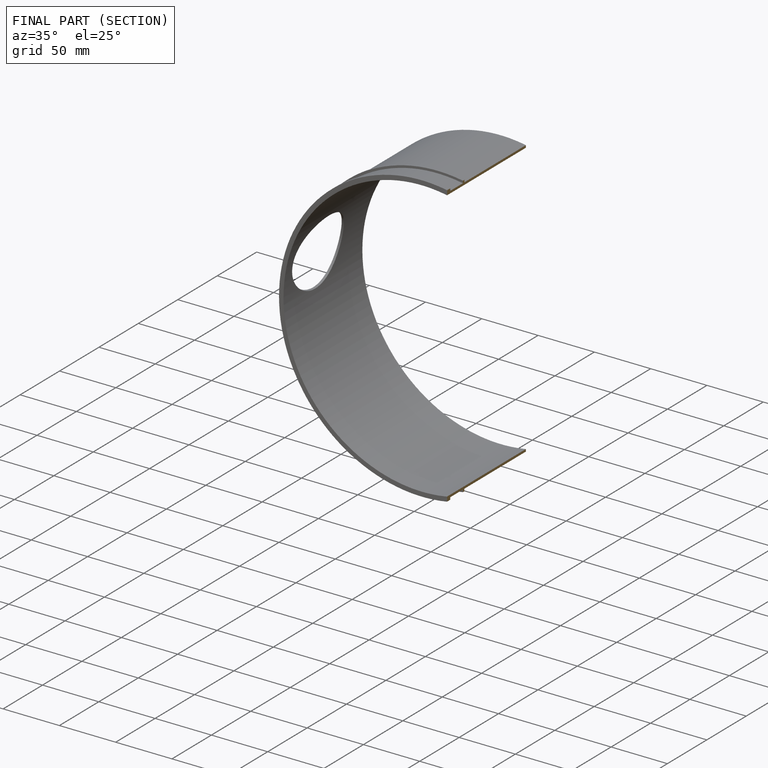
[diagram: finished part — half-section view (interior)]
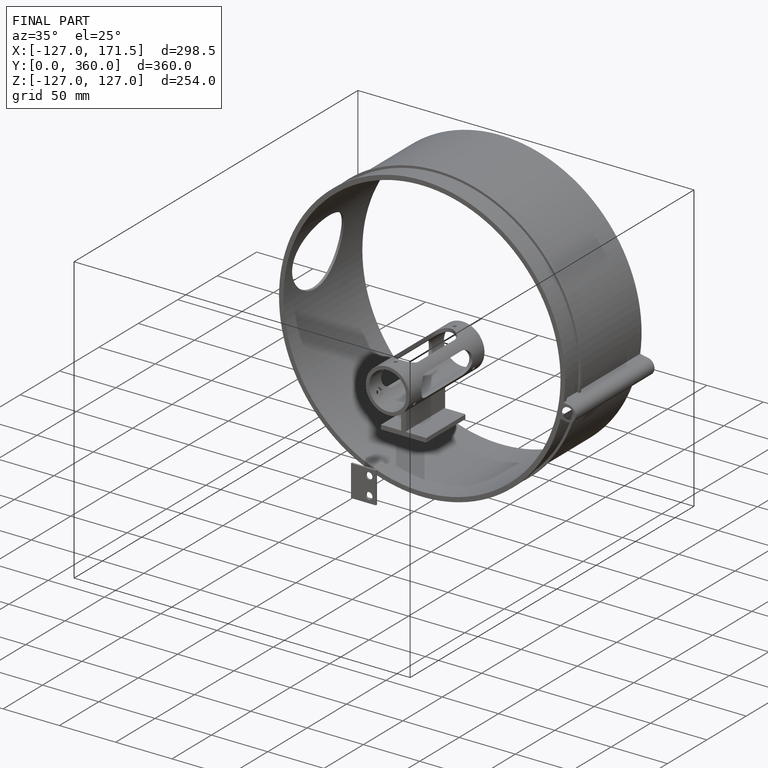
[diagram: finished part — iso view with bounding-box wireframe]
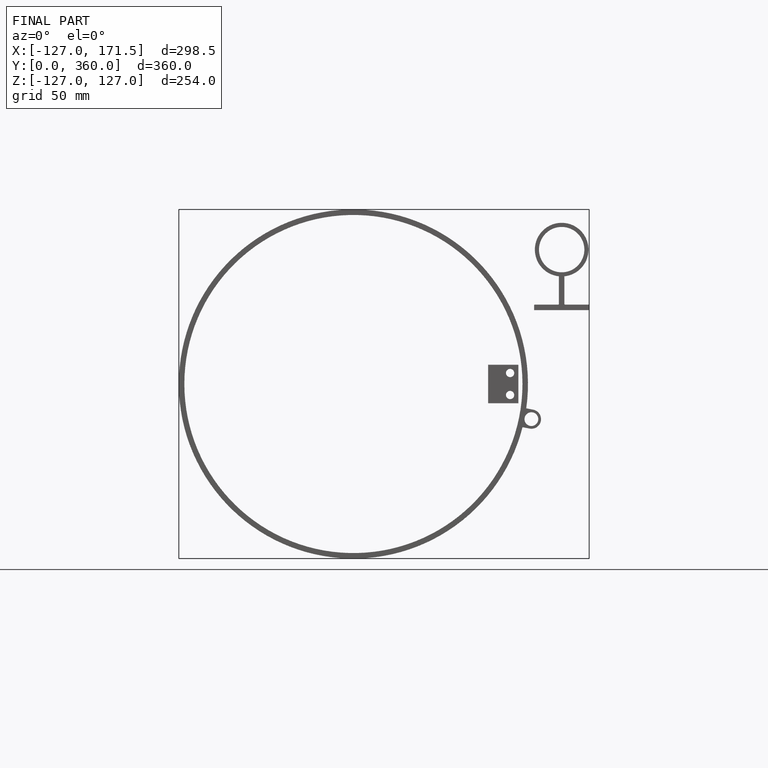
[diagram: finished part — front view with bounding-box wireframe]
